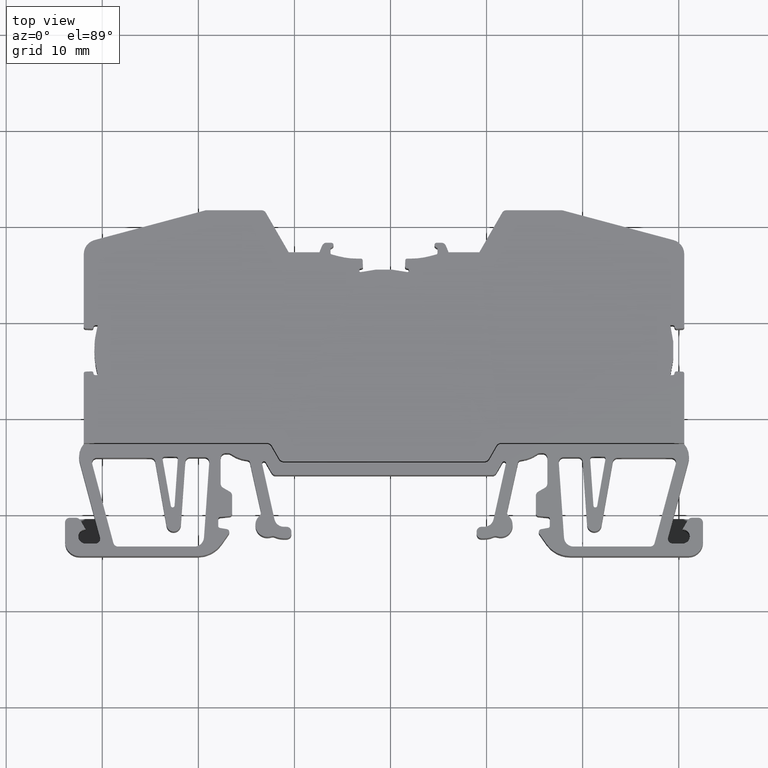
[diagram: clean part render]
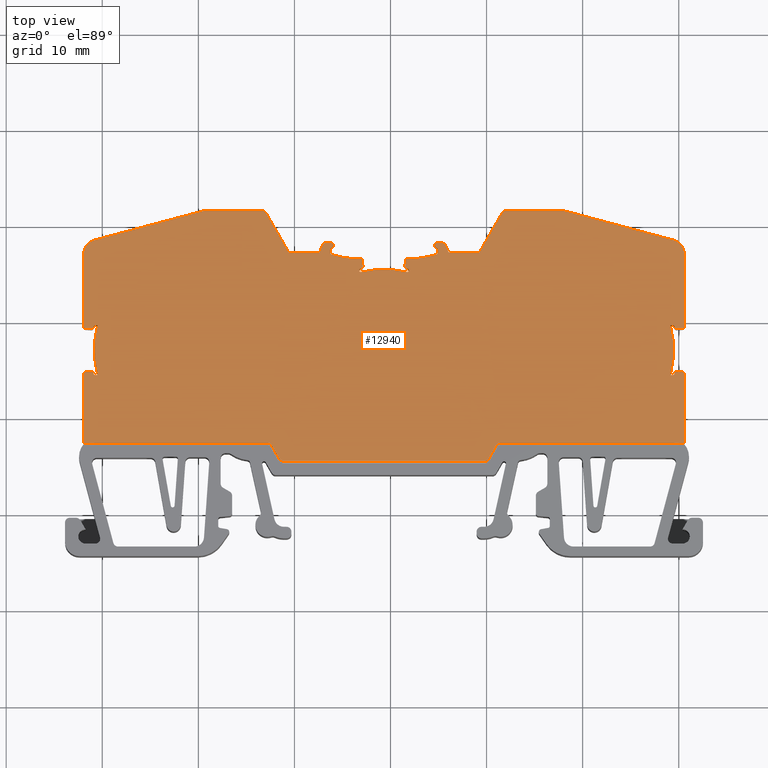
[diagram: same view with one face highlighted and labeled with its STEP entity id]
A machine part, top view. The second image highlights one B-rep face of the part: STEP entity #12940.
In plain terms, the highlighted planar face has unit normal (0, 0, 1).
Its self-contained STEP definition (entity closure, byte-faithful):
#69 = FACE_OUTER_BOUND ( 'NONE', #9108, .T. ) ;
#70 = CARTESIAN_POINT ( 'NONE',  ( 155.3216195286320600, 27.26186081523271900, -16.30000000000000100 ) ) ;
#81 = PLANE ( 'NONE',  #4797 ) ;
#94 = DIRECTION ( 'NONE',  ( 0.0000000000000000000, 0.0000000000000000000, 1.000000000000000000 ) ) ;
#99 = DIRECTION ( 'NONE',  ( 1.000000000000000000, 0.0000000000000000000, -0.0000000000000000000 ) ) ;
#1182 = VERTEX_POINT ( 'NONE', #11225 ) ;
#1184 = VERTEX_POINT ( 'NONE', #11243 ) ;
#1209 = VERTEX_POINT ( 'NONE', #11334 ) ;
#1212 = VERTEX_POINT ( 'NONE', #11313 ) ;
#1229 = VERTEX_POINT ( 'NONE', #11318 ) ;
#1243 = VERTEX_POINT ( 'NONE', #11294 ) ;
#1250 = VERTEX_POINT ( 'NONE', #11276 ) ;
#1255 = VERTEX_POINT ( 'NONE', #11326 ) ;
#1300 = VERTEX_POINT ( 'NONE', #11389 ) ;
#1880 = CARTESIAN_POINT ( 'NONE',  ( 184.6385301743371200, 30.63725046151475300, -16.30000000000000100 ) ) ;
#1885 = CARTESIAN_POINT ( 'NONE',  ( 181.7120907257660500, 25.56461171221572600, -16.30000000000000100 ) ) ;
#1892 = CARTESIAN_POINT ( 'NONE',  ( 176.7465662737640700, 25.41637851414622100, -16.30000000000000100 ) ) ;
#1907 = DIRECTION ( 'NONE',  ( 0.9999999927131956200, -0.0001207212018753209000, 0.0000000000000000000 ) ) ;
#1914 = LINE ( 'NONE', #1892, #13219 ) ;
#1917 = LINE ( 'NONE', #1885, #13218 ) ;
#1930 = CARTESIAN_POINT ( 'NONE',  ( 179.3214730323951500, 15.43934779043474500, -16.30000000000000100 ) ) ;
#1932 = CARTESIAN_POINT ( 'NONE',  ( 173.8219316421980500, 28.23404727670484600, -16.30000000000000100 ) ) ;
#1943 = DIRECTION ( 'NONE',  ( 0.0000000000000000000, 0.0000000000000000000, 1.000000000000000000 ) ) ;
#1944 = DIRECTION ( 'NONE',  ( -0.9999999999972321000, -2.352813720073950200E-006, 0.0000000000000000000 ) ) ;
#1948 = DIRECTION ( 'NONE',  ( 1.000000000000000000, 0.0000000000000000000, 0.0000000000000000000 ) ) ;
#1954 = LINE ( 'NONE', #1932, #13225 ) ;
#1956 = DIRECTION ( 'NONE',  ( -0.3826849168797564200, 0.9238789176037809400, 0.0000000000000000000 ) ) ;
#1969 = DIRECTION ( 'NONE',  ( -2.352813828535619900E-006, 0.9999999999972321000, 0.0000000000000000000 ) ) ;
#2078 = LINE ( 'NONE', #2096, #13310 ) ;
#2096 = CARTESIAN_POINT ( 'NONE',  ( 176.8947872689000700, 25.56460020675625000, -16.30000000000000100 ) ) ;
#2123 = CARTESIAN_POINT ( 'NONE',  ( 185.3038348674621100, 27.74000503296018000, -16.30000000000000100 ) ) ;
#2125 = DIRECTION ( 'NONE',  ( 1.000000000000000000, 0.0000000000000000000, 0.0000000000000000000 ) ) ;
#2126 = DIRECTION ( 'NONE',  ( -0.0000000000000000000, -0.0000000000000000000, -1.000000000000000000 ) ) ;
#2128 = DIRECTION ( 'NONE',  ( 1.000000000000000000, 0.0000000000000000000, 0.0000000000000000000 ) ) ;
#2135 = DIRECTION ( 'NONE',  ( 1.000000000000000000, 7.022160630754155400E-015, 0.0000000000000000000 ) ) ;
#2148 = DIRECTION ( 'NONE',  ( -0.0000000000000000000, -0.0000000000000000000, -1.000000000000000000 ) ) ;
#2150 = LINE ( 'NONE', #2184, #13305 ) ;
#2157 = CARTESIAN_POINT ( 'NONE',  ( 181.7482568532131200, 25.41638600124371900, -16.30000000000000100 ) ) ;
#2160 = DIRECTION ( 'NONE',  ( -0.0000000000000000000, -0.0000000000000000000, -1.000000000000000000 ) ) ;
#2164 = DIRECTION ( 'NONE',  ( -0.0000000000000000000, -0.0000000000000000000, -1.000000000000000000 ) ) ;
#2169 = CARTESIAN_POINT ( 'NONE',  ( 186.0432755812021000, 28.23407617920534900, -16.30000000000000100 ) ) ;
#2170 = CARTESIAN_POINT ( 'NONE',  ( 181.7482570713750900, 25.32366201334777100, -16.30000000000000100 ) ) ;
#2171 = CARTESIAN_POINT ( 'NONE',  ( 176.9309876021250400, 25.76420494983870000, -16.30000000000000100 ) ) ;
#2178 = DIRECTION ( 'NONE',  ( 1.000000000000000000, -5.214475715907972200E-014, 0.0000000000000000000 ) ) ;
#2182 = LINE ( 'NONE', #2169, #13269 ) ;
#2183 = DIRECTION ( 'NONE',  ( -1.000000000000000000, 0.0000000000000000000, 0.0000000000000000000 ) ) ;
#2184 = CARTESIAN_POINT ( 'NONE',  ( 177.1304020353941000, 25.77291914889471500, -16.30000000000000100 ) ) ;
#2187 = DIRECTION ( 'NONE',  ( 1.000000000000000000, 2.340720210250946800E-013, 0.0000000000000000000 ) ) ;
#2188 = DIRECTION ( 'NONE',  ( -0.04365727447751909000, 0.9990465666750446600, 0.0000000000000000000 ) ) ;
#2204 = CARTESIAN_POINT ( 'NONE',  ( 181.7121148222900600, 25.76421645384417000, -16.30000000000000100 ) ) ;
#2206 = DIRECTION ( 'NONE',  ( 1.000000000000000000, 0.0000000000000000000, 0.0000000000000000000 ) ) ;
#2216 = DIRECTION ( 'NONE',  ( 2.352813865996355100E-006, -0.9999999999972321000, 0.0000000000000000000 ) ) ;
#2224 = CARTESIAN_POINT ( 'NONE',  ( 181.8964781970860500, 25.41638634998070500, -16.30000000000000100 ) ) ;
#2236 = LINE ( 'NONE', #2224, #13322 ) ;
#2242 = DIRECTION ( 'NONE',  ( -0.0000000000000000000, -0.0000000000000000000, -1.000000000000000000 ) ) ;
#2249 = DIRECTION ( 'NONE',  ( -0.0000000000000000000, -0.0000000000000000000, -1.000000000000000000 ) ) ;
#2285 = CARTESIAN_POINT ( 'NONE',  ( 176.8947876176370900, 25.41637886288320700, -16.30000000000000100 ) ) ;
#2290 = DIRECTION ( 'NONE',  ( 1.000000000000000000, 0.0000000000000000000, 0.0000000000000000000 ) ) ;
#2304 = CARTESIAN_POINT ( 'NONE',  ( 176.8947878357251100, 25.32368628045970400, -16.30000000000000100 ) ) ;
#2305 = DIRECTION ( 'NONE',  ( -0.0000000000000000000, -0.0000000000000000000, -1.000000000000000000 ) ) ;
#2306 = DIRECTION ( 'NONE',  ( 1.000000000000000000, 0.0000000000000000000, 0.0000000000000000000 ) ) ;
#2358 = DIRECTION ( 'NONE',  ( 1.000000000000000000, 9.831024883056922400E-014, 0.0000000000000000000 ) ) ;
#2374 = DIRECTION ( 'NONE',  ( -0.0000000000000000000, -0.0000000000000000000, -1.000000000000000000 ) ) ;
#2384 = CARTESIAN_POINT ( 'NONE',  ( 173.8219322234270700, 27.98701170358267700, -16.30000000000000100 ) ) ;
#2391 = CARTESIAN_POINT ( 'NONE',  ( 181.5396012681551100, 26.39010187267174600, -16.30000000000000100 ) ) ;
#2393 = DIRECTION ( 'NONE',  ( -0.04354604023867592000, -0.9990514212889802800, 0.0000000000000000000 ) ) ;
#2400 = CARTESIAN_POINT ( 'NONE',  ( 209.5413637318528700, 19.57110775040447200, -16.29999999999999700 ) ) ;
#2401 = CARTESIAN_POINT ( 'NONE',  ( 209.5635305405041900, 19.47030078032660300, -16.29999999999999700 ) ) ;
#2407 = DIRECTION ( 'NONE',  ( -0.0000000000000000000, -0.0000000000000000000, -1.000000000000000000 ) ) ;
#2408 = DIRECTION ( 'NONE',  ( 1.000000000000000000, 1.404432126150515500E-014, 0.0000000000000000000 ) ) ;
#2412 = CARTESIAN_POINT ( 'NONE',  ( 209.4646623949039400, 19.64497716286755800, -16.30000000000000400 ) ) ;
#2413 = CARTESIAN_POINT ( 'NONE',  ( 209.5615362242281500, 19.52519385830133900, -16.30000000000000100 ) ) ;
#2421 = CARTESIAN_POINT ( 'NONE',  ( 209.3636105972982800, 19.66463029271124100, -16.29999999999999700 ) ) ;
#2429 = CARTESIAN_POINT ( 'NONE',  ( 209.4178221994311000, 19.66419883169367500, -16.29999999999999700 ) ) ;
#2433 = LINE ( 'NONE', #2391, #13390 ) ;
#2435 = CARTESIAN_POINT ( 'NONE',  ( 173.3393940226961000, 27.73997499513723100, -16.30000000000000100 ) ) ;
#2441 = DIRECTION ( 'NONE',  ( -0.3826827570088284200, -0.9238798122527205300, 0.0000000000000000000 ) ) ;
#2444 = LINE ( 'NONE', #1880, #13359 ) ;
#2462 = CARTESIAN_POINT ( 'NONE',  ( 172.8829316955540200, 27.92904757763374200, -16.30000000000000100 ) ) ;
#2467 = LINE ( 'NONE', #2468, #13373 ) ;
#2468 = CARTESIAN_POINT ( 'NONE',  ( 181.5778977227934700, 16.07271139915344800, -16.29999999999999700 ) ) ;
#2470 = LINE ( 'NONE', #2462, #13348 ) ;
#2477 = DIRECTION ( 'NONE',  ( -0.9990477967756290500, 0.04362911594063379600, -0.0000000000000000000 ) ) ;
#2780 = EDGE_CURVE ( 'NONE', #8510, #8458, #1917, .T. ) ;
#2783 = EDGE_CURVE ( 'NONE', #8516, #8523, #1914, .T. ) ;
#2785 = EDGE_CURVE ( 'NONE', #8530, #8436, #1954, .T. ) ;
#2786 = EDGE_CURVE ( 'NONE', #8456, #8525, #13224, .T. ) ;
#2832 = EDGE_CURVE ( 'NONE', #8536, #8492, #2078, .T. ) ;
#2840 = EDGE_CURVE ( 'NONE', #8458, #8545, #13294, .T. ) ;
#2843 = EDGE_CURVE ( 'NONE', #8442, #8457, #13299, .T. ) ;
#2847 = EDGE_CURVE ( 'NONE', #8529, #8522, #2150, .T. ) ;
#2849 = EDGE_CURVE ( 'NONE', #8529, #8492, #13307, .T. ) ;
#2851 = EDGE_CURVE ( 'NONE', #8442, #8533, #2182, .T. ) ;
#2853 = EDGE_CURVE ( 'NONE', #8444, #8456, #13321, .T. ) ;
#2859 = EDGE_CURVE ( 'NONE', #8510, #8500, #13318, .T. ) ;
#2863 = EDGE_CURVE ( 'NONE', #8545, #8444, #2236, .T. ) ;
#2876 = EDGE_CURVE ( 'NONE', #8523, #8536, #13291, .T. ) ;
#2889 = EDGE_CURVE ( 'NONE', #8525, #8516, #13367, .T. ) ;
#2902 = EDGE_CURVE ( 'NONE', #8530, #8460, #13372, .T. ) ;
#2908 = EDGE_CURVE ( 'NONE', #8491, #8436, #13336, .T. ) ;
#2914 = EDGE_CURVE ( 'NONE', #8559, #8497, #5306, .T. ) ;
#2919 = EDGE_CURVE ( 'NONE', #8514, #8500, #2433, .T. ) ;
#2922 = EDGE_CURVE ( 'NONE', #8491, #8563, #2470, .T. ) ;
#2926 = EDGE_CURVE ( 'NONE', #8573, #8577, #2467, .T. ) ;
#2935 = EDGE_CURVE ( 'NONE', #8596, #8457, #2444, .T. ) ;
#2936 = EDGE_CURVE ( 'NONE', #8563, #8592, #7151, .T. ) ;
#2939 = EDGE_CURVE ( 'NONE', #8587, #8460, #7147, .T. ) ;
#2954 = EDGE_CURVE ( 'NONE', #8557, #8497, #5284, .T. ) ;
#2956 = EDGE_CURVE ( 'NONE', #1209, #8533, #13389, .T. ) ;
#2965 = EDGE_CURVE ( 'NONE', #8552, #8577, #5302, .T. ) ;
#2966 = EDGE_CURVE ( 'NONE', #8652, #8596, #7228, .T. ) ;
#2968 = EDGE_CURVE ( 'NONE', #8578, #8541, #5289, .T. ) ;
#2974 = EDGE_CURVE ( 'NONE', #8562, #8548, #5293, .T. ) ;
#2975 = EDGE_CURVE ( 'NONE', #8643, #8634, #5280, .T. ) ;
#2978 = EDGE_CURVE ( 'NONE', #8552, #8574, #5292, .T. ) ;
#2979 = EDGE_CURVE ( 'NONE', #8578, #8610, #7304, .T. ) ;
#2995 = EDGE_CURVE ( 'NONE', #8562, #8589, #5295, .T. ) ;
#3000 = EDGE_CURVE ( 'NONE', #8603, #8557, #7340, .T. ) ;
#3005 = EDGE_CURVE ( 'NONE', #8553, #8548, #6362, .T. ) ;
#3010 = EDGE_CURVE ( 'NONE', #8576, #8553, #5288, .T. ) ;
#3011 = EDGE_CURVE ( 'NONE', #8576, #8489, #5307, .T. ) ;
#3016 = EDGE_CURVE ( 'NONE', #8613, #8541, #5308, .T. ) ;
#3019 = EDGE_CURVE ( 'NONE', #8610, #8570, #5313, .T. ) ;
#3036 = EDGE_CURVE ( 'NONE', #8585, #8670, #6537, .T. ) ;
#3037 = EDGE_CURVE ( 'NONE', #1182, #8613, #6552, .T. ) ;
#3050 = EDGE_CURVE ( 'NONE', #8589, #8659, #5315, .T. ) ;
#3061 = EDGE_CURVE ( 'NONE', #8673, #8614, #5317, .T. ) ;
#3075 = EDGE_CURVE ( 'NONE', #8670, #8673, #6769, .T. ) ;
#3083 = EDGE_CURVE ( 'NONE', #8585, #8656, #5355, .T. ) ;
#3102 = EDGE_CURVE ( 'NONE', #8652, #8727, #6854, .T. ) ;
#3103 = EDGE_CURVE ( 'NONE', #8723, #8592, #6885, .T. ) ;
#3106 = EDGE_CURVE ( 'NONE', #8659, #8680, #5396, .T. ) ;
#3119 = EDGE_CURVE ( 'NONE', #8643, #8723, #6960, .T. ) ;
#3139 = EDGE_CURVE ( 'NONE', #8614, #8633, #5381, .T. ) ;
#3145 = EDGE_CURVE ( 'NONE', #8642, #8573, #5390, .T. ) ;
#3148 = EDGE_CURVE ( 'NONE', #8727, #8656, #7055, .T. ) ;
#3152 = EDGE_CURVE ( 'NONE', #1184, #8720, #5364, .T. ) ;
#3155 = EDGE_CURVE ( 'NONE', #8559, #8605, #7059, .T. ) ;
#3158 = EDGE_CURVE ( 'NONE', #8716, #8570, #5354, .T. ) ;
#3162 = EDGE_CURVE ( 'NONE', #8724, #8587, #7106, .T. ) ;
#3175 = EDGE_CURVE ( 'NONE', #8683, #8622, #5366, .T. ) ;
#3176 = EDGE_CURVE ( 'NONE', #8514, #8701, #13539, .T. ) ;
#3178 = EDGE_CURVE ( 'NONE', #8692, #1243, #5334, .T. ) ;
#3179 = EDGE_CURVE ( 'NONE', #8692, #1255, #17211, .T. ) ;
#3181 = EDGE_CURVE ( 'NONE', #8683, #1300, #17227, .T. ) ;
#3185 = EDGE_CURVE ( 'NONE', #8700, #8681, #13558, .T. ) ;
#3188 = EDGE_CURVE ( 'NONE', #8720, #8489, #15745, .T. ) ;
#3190 = EDGE_CURVE ( 'NONE', #8737, #8700, #15762, .T. ) ;
#3191 = EDGE_CURVE ( 'NONE', #8574, #8721, #15749, .T. ) ;
#3192 = EDGE_CURVE ( 'NONE', #8605, #8721, #5340, .T. ) ;
#3197 = EDGE_CURVE ( 'NONE', #8736, #8726, #13565, .T. ) ;
#3198 = EDGE_CURVE ( 'NONE', #8731, #8722, #15789, .T. ) ;
#3199 = EDGE_CURVE ( 'NONE', #8680, #8634, #5356, .T. ) ;
#3202 = EDGE_CURVE ( 'NONE', #8642, #8734, #15792, .T. ) ;
#3203 = EDGE_CURVE ( 'NONE', #8711, #1243, #15796, .T. ) ;
#3205 = EDGE_CURVE ( 'NONE', #8603, #8633, #5382, .T. ) ;
#3213 = EDGE_CURVE ( 'NONE', #8730, #8679, #15918, .T. ) ;
#3214 = EDGE_CURVE ( 'NONE', #1300, #1229, #5341, .T. ) ;
#3217 = EDGE_CURVE ( 'NONE', #8622, #8716, #15897, .T. ) ;
#3221 = EDGE_CURVE ( 'NONE', #8679, #8724, #13608, .T. ) ;
#3232 = EDGE_CURVE ( 'NONE', #8711, #1250, #5369, .T. ) ;
#3236 = EDGE_CURVE ( 'NONE', #8681, #8736, #16032, .T. ) ;
#3239 = EDGE_CURVE ( 'NONE', #1229, #1250, #16053, .T. ) ;
#3256 = EDGE_CURVE ( 'NONE', #8731, #8522, #13638, .T. ) ;
#3258 = EDGE_CURVE ( 'NONE', #8726, #8701, #16279, .T. ) ;
#3263 = EDGE_CURVE ( 'NONE', #1255, #8688, #5361, .T. ) ;
#3269 = EDGE_CURVE ( 'NONE', #8722, #8730, #13630, .T. ) ;
#3272 = EDGE_CURVE ( 'NONE', #8688, #8734, #16366, .T. ) ;
#3275 = EDGE_CURVE ( 'NONE', #1212, #8737, #16424, .T. ) ;
#4460 = AXIS2_PLACEMENT_3D ( 'NONE', #10120, #10121, #10129 ) ;
#4485 = CIRCLE ( 'NONE', #4460, 0.2470355731225004600 ) ;
#4797 = AXIS2_PLACEMENT_3D ( 'NONE', #70, #94, #99 ) ;
#5039 = B_SPLINE_CURVE_WITH_KNOTS ( 'NONE', 3,
 ( #9954, #9916, #9927, #9934 ),
 .UNSPECIFIED., .F., .F.,
 ( 4, 4 ),
 ( 0.0000000000000000000, 0.5000010228767071100 ),
 .UNSPECIFIED. ) ;
#5280 = B_SPLINE_CURVE_WITH_KNOTS ( 'NONE', 3,
 ( #7286, #7266, #7274, #7279, #7292, #7275 ),
 .UNSPECIFIED., .F., .F.,
 ( 4, 2, 4 ),
 ( 0.0000000000000000000, 0.5000000000000000000, 1.000000000000000000 ),
 .UNSPECIFIED. ) ;
#5284 = B_SPLINE_CURVE_WITH_KNOTS ( 'NONE', 3,
 ( #7179, #7203, #7184, #7187, #7202, #7188 ),
 .UNSPECIFIED., .F., .F.,
 ( 4, 2, 4 ),
 ( 0.0000000000000000000, 0.5000000000000000000, 1.000000000000000000 ),
 .UNSPECIFIED. ) ;
#5288 = B_SPLINE_CURVE_WITH_KNOTS ( 'NONE', 3,
 ( #6374, #6352, #6365, #6391, #6353, #6376 ),
 .UNSPECIFIED., .F., .F.,
 ( 4, 2, 4 ),
 ( 0.0000000000000000000, 0.5000000000000000000, 1.000000000000000000 ),
 .UNSPECIFIED. ) ;
#5289 = B_SPLINE_CURVE_WITH_KNOTS ( 'NONE', 3,
 ( #7244, #7220, #7264, #7232, #7234, #7248 ),
 .UNSPECIFIED., .F., .F.,
 ( 4, 2, 4 ),
 ( 0.0000000000000000000, 0.5000000000000000000, 1.000000000000000000 ),
 .UNSPECIFIED. ) ;
#5292 = B_SPLINE_CURVE_WITH_KNOTS ( 'NONE', 3,
 ( #7268, #7276, #7309, #7313, #7312, #7336 ),
 .UNSPECIFIED., .F., .F.,
 ( 4, 2, 4 ),
 ( 0.0000000000000000000, 0.5000000000000000000, 1.000000000000000000 ),
 .UNSPECIFIED. ) ;
#5293 = B_SPLINE_CURVE_WITH_KNOTS ( 'NONE', 3,
 ( #7283, #7272, #7285, #7281, #7280, #7291 ),
 .UNSPECIFIED., .F., .F.,
 ( 4, 2, 4 ),
 ( 0.0000000000000000000, 0.5000000000000000000, 1.000000000000000000 ),
 .UNSPECIFIED. ) ;
#5295 = B_SPLINE_CURVE_WITH_KNOTS ( 'NONE', 3,
 ( #7371, #7363, #7345, #7365 ),
 .UNSPECIFIED., .F., .F.,
 ( 4, 4 ),
 ( 0.0000000000000000000, 1.000000000000000000 ),
 .UNSPECIFIED. ) ;
#5302 = B_SPLINE_CURVE_WITH_KNOTS ( 'NONE', 3,
 ( #7229, #7216, #7251, #7257, #7218, #7260 ),
 .UNSPECIFIED., .F., .F.,
 ( 4, 2, 4 ),
 ( 0.0000000000000000000, 0.5000000000000000000, 1.000000000000000000 ),
 .UNSPECIFIED. ) ;
#5306 = B_SPLINE_CURVE_WITH_KNOTS ( 'NONE', 3,
 ( #2421, #2429, #2412, #2400, #2413, #2401 ),
 .UNSPECIFIED., .F., .F.,
 ( 4, 2, 4 ),
 ( 0.0000000000000000000, 0.5000000000000000000, 1.000000000000000000 ),
 .UNSPECIFIED. ) ;
#5307 = B_SPLINE_CURVE_WITH_KNOTS ( 'NONE', 3,
 ( #6372, #6377, #6395, #6367, #6394, #6364 ),
 .UNSPECIFIED., .F., .F.,
 ( 4, 2, 4 ),
 ( 0.0000000000000000000, 0.5000000000000000000, 1.000000000000000000 ),
 .UNSPECIFIED. ) ;
#5308 = B_SPLINE_CURVE_WITH_KNOTS ( 'NONE', 3,
 ( #6355, #6445, #6435, #6419, #6420, #6438 ),
 .UNSPECIFIED., .F., .F.,
 ( 4, 2, 4 ),
 ( 0.0000000000000000000, 0.5000000000000000000, 1.000000000000000000 ),
 .UNSPECIFIED. ) ;
#5313 = B_SPLINE_CURVE_WITH_KNOTS ( 'NONE', 3,
 ( #6411, #6436, #6442, #6398, #6444, #6412 ),
 .UNSPECIFIED., .F., .F.,
 ( 4, 2, 4 ),
 ( 0.0000000000000000000, 0.5000000000000000000, 1.000000000000000000 ),
 .UNSPECIFIED. ) ;
#5315 = B_SPLINE_CURVE_WITH_KNOTS ( 'NONE', 3,
 ( #6583, #6596, #6701, #6696, #6711, #6716 ),
 .UNSPECIFIED., .F., .F.,
 ( 4, 2, 4 ),
 ( 0.0000000000000000000, 0.5000000000000000000, 1.000000000000000000 ),
 .UNSPECIFIED. ) ;
#5317 = B_SPLINE_CURVE_WITH_KNOTS ( 'NONE', 3,
 ( #6705, #6695, #6699, #6700, #6750, #6773 ),
 .UNSPECIFIED., .F., .F.,
 ( 4, 2, 4 ),
 ( 0.0000000000000000000, 0.5000000000000000000, 1.000000000000000000 ),
 .UNSPECIFIED. ) ;
#5334 = B_SPLINE_CURVE_WITH_KNOTS ( 'NONE', 3,
 ( #17206, #17215, #17232, #17207, #17200, #17229 ),
 .UNSPECIFIED., .F., .F.,
 ( 4, 2, 4 ),
 ( 0.0000000000000000000, 0.5000000000000000000, 1.000000000000000000 ),
 .UNSPECIFIED. ) ;
#5340 = B_SPLINE_CURVE_WITH_KNOTS ( 'NONE', 3,
 ( #15803, #15801, #15825, #15770, #15768, #15786 ),
 .UNSPECIFIED., .F., .F.,
 ( 4, 2, 4 ),
 ( 0.0000000000000000000, 0.5000000000000000000, 1.000000000000000000 ),
 .UNSPECIFIED. ) ;
#5341 = B_SPLINE_CURVE_WITH_KNOTS ( 'NONE', 3,
 ( #15912, #15914, #15930, #15842, #15844, #15895 ),
 .UNSPECIFIED., .F., .F.,
 ( 4, 2, 4 ),
 ( 0.0000000000000000000, 0.5000000000000000000, 1.000000000000000000 ),
 .UNSPECIFIED. ) ;
#5354 = B_SPLINE_CURVE_WITH_KNOTS ( 'NONE', 3,
 ( #7040, #7051, #7091, #7095 ),
 .UNSPECIFIED., .F., .F.,
 ( 4, 4 ),
 ( 0.5576627261517963500, 1.000000000000000000 ),
 .UNSPECIFIED. ) ;
#5355 = B_SPLINE_CURVE_WITH_KNOTS ( 'NONE', 3,
 ( #6834, #6786, #6818, #6787, #6820, #6799 ),
 .UNSPECIFIED., .F., .F.,
 ( 4, 2, 4 ),
 ( 0.0000000000000000000, 0.5000000000000000000, 1.000000000000000000 ),
 .UNSPECIFIED. ) ;
#5356 = B_SPLINE_CURVE_WITH_KNOTS ( 'NONE', 3,
 ( #15820, #15777, #15778, #15790 ),
 .UNSPECIFIED., .F., .F.,
 ( 4, 4 ),
 ( 0.0000000000000000000, 1.000000000000000000 ),
 .UNSPECIFIED. ) ;
#5361 = B_SPLINE_CURVE_WITH_KNOTS ( 'NONE', 3,
 ( #16229, #16293, #16245, #16253, #16300, #16264 ),
 .UNSPECIFIED., .F., .F.,
 ( 4, 2, 4 ),
 ( 0.0000000000000000000, 0.5000000000000000000, 1.000000000000000000 ),
 .UNSPECIFIED. ) ;
#5364 = B_SPLINE_CURVE_WITH_KNOTS ( 'NONE', 3,
 ( #7031, #7030, #7064, #7047 ),
 .UNSPECIFIED., .F., .F.,
 ( 4, 4 ),
 ( 0.5000010228767071100, 1.000000000000000000 ),
 .UNSPECIFIED. ) ;
#5366 = B_SPLINE_CURVE_WITH_KNOTS ( 'NONE', 3,
 ( #17219, #17223, #17210, #17228 ),
 .UNSPECIFIED., .F., .F.,
 ( 4, 4 ),
 ( 0.0000000000000000000, 0.5494098664776109200 ),
 .UNSPECIFIED. ) ;
#5369 = B_SPLINE_CURVE_WITH_KNOTS ( 'NONE', 3,
 ( #15971, #15975, #16057, #16091, #16089, #16073 ),
 .UNSPECIFIED., .F., .F.,
 ( 4, 2, 4 ),
 ( 0.0000000000000000000, 0.5000000000000000000, 1.000000000000000000 ),
 .UNSPECIFIED. ) ;
#5381 = B_SPLINE_CURVE_WITH_KNOTS ( 'NONE', 3,
 ( #7028, #6986, #6983, #7011 ),
 .UNSPECIFIED., .F., .F.,
 ( 4, 4 ),
 ( 0.0000000000000000000, 1.000000000000000000 ),
 .UNSPECIFIED. ) ;
#5382 = B_SPLINE_CURVE_WITH_KNOTS ( 'NONE', 3,
 ( #15855, #15879, #15928, #15857, #15884, #15849 ),
 .UNSPECIFIED., .F., .F.,
 ( 4, 2, 4 ),
 ( 0.0000000000000000000, 0.5000000000000000000, 1.000000000000000000 ),
 .UNSPECIFIED. ) ;
#5390 = B_SPLINE_CURVE_WITH_KNOTS ( 'NONE', 3,
 ( #7002, #6994, #7048, #7036, #7074, #7075 ),
 .UNSPECIFIED., .F., .F.,
 ( 4, 2, 4 ),
 ( 0.0000000000000000000, 0.5000000000000000000, 1.000000000000000000 ),
 .UNSPECIFIED. ) ;
#5396 = B_SPLINE_CURVE_WITH_KNOTS ( 'NONE', 3,
 ( #6901, #6914, #6922, #6908 ),
 .UNSPECIFIED., .F., .F.,
 ( 4, 4 ),
 ( 0.0000000000000000000, 1.000000000000000000 ),
 .UNSPECIFIED. ) ;
#6352 = CARTESIAN_POINT ( 'NONE',  ( 149.0815221393042400, 19.41745401807800800, -16.29999999999999700 ) ) ;
#6353 = CARTESIAN_POINT ( 'NONE',  ( 148.9271945799650900, 19.27385504936715700, -16.30000000000000100 ) ) ;
#6355 = CARTESIAN_POINT ( 'NONE',  ( 149.2829395562747800, 14.45297880150514800, -16.29999999999999700 ) ) ;
#6362 = LINE ( 'NONE', #6383, #13416 ) ;
#6364 = CARTESIAN_POINT ( 'NONE',  ( 149.2829402196636000, 19.66463029271150400, -16.29999999999999700 ) ) ;
#6365 = CARTESIAN_POINT ( 'NONE',  ( 149.0580470671206100, 19.36556705823798600, -16.29999999999999700 ) ) ;
#6367 = CARTESIAN_POINT ( 'NONE',  ( 149.1815452920446000, 19.64533051874187200, -16.29999999999999700 ) ) ;
#6372 = CARTESIAN_POINT ( 'NONE',  ( 149.0830206511378400, 19.47030181121678900, -16.29999999999999700 ) ) ;
#6374 = CARTESIAN_POINT ( 'NONE',  ( 149.0830206511378400, 19.47030181121678900, -16.29999999999999700 ) ) ;
#6376 = CARTESIAN_POINT ( 'NONE',  ( 148.8743756615359900, 19.27616168847231400, -16.29999999999999700 ) ) ;
#6377 = CARTESIAN_POINT ( 'NONE',  ( 149.0849889307633900, 19.52447801051433600, -16.29999999999999700 ) ) ;
#6383 = CARTESIAN_POINT ( 'NONE',  ( 181.6552771971049900, 17.84459679403024900, -16.29999999999999700 ) ) ;
#6384 = DIRECTION ( 'NONE',  ( -0.9990477967756292700, 0.04362911594062896000, -0.0000000000000000000 ) ) ;
#6391 = CARTESIAN_POINT ( 'NONE',  ( 148.9806356673790900, 19.29353716793885100, -16.29999999999999700 ) ) ;
#6394 = CARTESIAN_POINT ( 'NONE',  ( 149.2280126655907700, 19.66419313076702800, -16.30000000000000100 ) ) ;
#6395 = CARTESIAN_POINT ( 'NONE',  ( 149.1055309060057000, 19.57075439453015900, -16.30000000000000400 ) ) ;
#6398 = CARTESIAN_POINT ( 'NONE',  ( 148.0921810988395200, 14.71543399127770400, -16.29999999999999700 ) ) ;
#6411 = CARTESIAN_POINT ( 'NONE',  ( 148.2645154541361900, 14.81481454997951800, -16.29999999999999700 ) ) ;
#6412 = CARTESIAN_POINT ( 'NONE',  ( 148.0732485454940700, 14.61500499063273800, -16.30000000000000100 ) ) ;
#6419 = CARTESIAN_POINT ( 'NONE',  ( 149.1051873163059200, 14.54650160031450800, -16.29999999999999700 ) ) ;
#6420 = CARTESIAN_POINT ( 'NONE',  ( 149.0850149129125800, 14.59241543282462800, -16.30000000000000100 ) ) ;
#6435 = CARTESIAN_POINT ( 'NONE',  ( 149.1818883525614900, 14.47263219838437100, -16.30000000000000400 ) ) ;
#6436 = CARTESIAN_POINT ( 'NONE',  ( 148.2109629447107900, 14.81205208008062300, -16.29999999999999700 ) ) ;
#6438 = CARTESIAN_POINT ( 'NONE',  ( 149.0830206242535500, 14.64730839687979900, -16.29999999999999700 ) ) ;
#6442 = CARTESIAN_POINT ( 'NONE',  ( 148.1653569559484000, 14.79117980543230000, -16.30000000000000400 ) ) ;
#6444 = CARTESIAN_POINT ( 'NONE',  ( 148.0736732449236400, 14.66933335536998400, -16.30000000000000100 ) ) ;
#6445 = CARTESIAN_POINT ( 'NONE',  ( 149.2287284139405000, 14.45341044206397300, -16.29999999999999700 ) ) ;
#6537 = LINE ( 'NONE', #6541, #13433 ) ;
#6541 = CARTESIAN_POINT ( 'NONE',  ( 197.8732685254500200, 31.61042837215304900, -16.29999999999999700 ) ) ;
#6552 = LINE ( 'NONE', #6554, #13455 ) ;
#6554 = CARTESIAN_POINT ( 'NONE',  ( 179.3234426320405000, 14.45287845167088000, -16.29999999999999700 ) ) ;
#6555 = DIRECTION ( 'NONE',  ( 0.9999999999999923400, 1.231191674211198800E-007, -0.0000000000000000000 ) ) ;
#6556 = DIRECTION ( 'NONE',  ( -0.9999999999944205700, 3.340484479243183300E-006, -0.0000000000000000000 ) ) ;
#6583 = CARTESIAN_POINT ( 'NONE',  ( 148.0732448195256800, 27.05647520077374700, -16.29999999999999700 ) ) ;
#6596 = CARTESIAN_POINT ( 'NONE',  ( 148.0732448195258300, 27.38372447955580200, -16.29999999999999700 ) ) ;
#6695 = CARTESIAN_POINT ( 'NONE',  ( 209.7776333987838500, 28.42066566522396800, -16.29999999999999700 ) ) ;
#6696 = CARTESIAN_POINT ( 'NONE',  ( 148.5824316509635100, 28.22924173997366300, -16.29999999999999700 ) ) ;
#6699 = CARTESIAN_POINT ( 'NONE',  ( 210.0641198683880800, 28.22924149575500900, -16.29999999999999700 ) ) ;
#6700 = CARTESIAN_POINT ( 'NONE',  ( 210.4625534280972700, 27.70999242410225700, -16.29999999999999700 ) ) ;
#6701 = CARTESIAN_POINT ( 'NONE',  ( 148.1839981280484200, 27.70999315820292400, -16.29999999999999700 ) ) ;
#6705 = CARTESIAN_POINT ( 'NONE',  ( 209.4615346553344800, 28.50536400858702600, -16.29999999999999700 ) ) ;
#6711 = CARTESIAN_POINT ( 'NONE',  ( 148.8689179621401900, 28.42066571841735000, -16.30000000000000100 ) ) ;
#6716 = CARTESIAN_POINT ( 'NONE',  ( 149.1850165070683800, 28.50536400858700500, -16.30000000000000100 ) ) ;
#6750 = CARTESIAN_POINT ( 'NONE',  ( 210.5733066119077000, 27.38372345193509700, -16.30000000000000100 ) ) ;
#6769 = LINE ( 'NONE', #6770, #13496 ) ;
#6770 = CARTESIAN_POINT ( 'NONE',  ( 209.4615346553344800, 28.50536400858699800, -16.29999999999999700 ) ) ;
#6773 = CARTESIAN_POINT ( 'NONE',  ( 210.5733034060161500, 27.05647430537957000, -16.29999999999999700 ) ) ;
#6780 = DIRECTION ( 'NONE',  ( 0.9659258718755188200, -0.2588188749715109600, -0.0000000000000000000 ) ) ;
#6786 = CARTESIAN_POINT ( 'NONE',  ( 191.9664346697803400, 31.60991618691982200, -16.29999999999999700 ) ) ;
#6787 = CARTESIAN_POINT ( 'NONE',  ( 191.7299090363283900, 31.49976412349867500, -16.29999999999999700 ) ) ;
#6799 = CARTESIAN_POINT ( 'NONE',  ( 191.6230821324231800, 31.36042680044299400, -16.29999999999999700 ) ) ;
#6818 = CARTESIAN_POINT ( 'NONE',  ( 191.8822799537036600, 31.58711618834903600, -16.30000000000000400 ) ) ;
#6820 = CARTESIAN_POINT ( 'NONE',  ( 191.6689047945900500, 31.43875974145832300, -16.30000000000000100 ) ) ;
#6834 = CARTESIAN_POINT ( 'NONE',  ( 192.0560947831845100, 31.61042765594745400, -16.29999999999999700 ) ) ;
#6835 = DIRECTION ( 'NONE',  ( 1.000000000000000000, 0.0000000000000000000, -0.0000000000000000000 ) ) ;
#6854 = LINE ( 'NONE', #6882, #13479 ) ;
#6882 = CARTESIAN_POINT ( 'NONE',  ( 169.4015378956240200, 27.24152987253115300, -16.29999999999999700 ) ) ;
#6885 = LINE ( 'NONE', #6891, #13466 ) ;
#6891 = CARTESIAN_POINT ( 'NONE',  ( 189.2450132667794900, 27.24152987253115300, -16.29999999999999700 ) ) ;
#6901 = CARTESIAN_POINT ( 'NONE',  ( 149.1850165070683800, 28.50536400858700500, -16.30000000000000100 ) ) ;
#6908 = CARTESIAN_POINT ( 'NONE',  ( 160.7732843550065000, 31.61042883250452800, -16.30000000000000100 ) ) ;
#6914 = CARTESIAN_POINT ( 'NONE',  ( 153.0477739200391100, 29.54038600874522700, -16.30000000000001100 ) ) ;
#6919 = DIRECTION ( 'NONE',  ( 1.000000000000000000, 0.0000000000000000000, -0.0000000000000000000 ) ) ;
#6922 = CARTESIAN_POINT ( 'NONE',  ( 156.9105313330097700, 30.57540800890343400, -16.30000000000001100 ) ) ;
#6942 = CARTESIAN_POINT ( 'NONE',  ( 169.4015125559714900, 27.24152987253115300, -16.29999999999999700 ) ) ;
#6949 = DIRECTION ( 'NONE',  ( 0.4999996466730368700, -0.8660256077777598300, -0.0000000000000000000 ) ) ;
#6960 = LINE ( 'NONE', #6942, #13463 ) ;
#6983 = CARTESIAN_POINT ( 'NONE',  ( 210.5733022028703700, 22.02056124664516500, -16.29999999999999700 ) ) ;
#6986 = CARTESIAN_POINT ( 'NONE',  ( 210.5733042728741700, 24.53851822370943100, -16.29999999999999700 ) ) ;
#6994 = CARTESIAN_POINT ( 'NONE',  ( 210.5728834789749700, 14.66862704056854700, -16.29999999999999700 ) ) ;
#7002 = CARTESIAN_POINT ( 'NONE',  ( 210.5733026169092200, 14.61500499063750000, -16.29999999999999700 ) ) ;
#7011 = CARTESIAN_POINT ( 'NONE',  ( 210.5733050089729400, 19.50260426958075400, -16.29999999999999700 ) ) ;
#7028 = CARTESIAN_POINT ( 'NONE',  ( 210.5733034060161500, 27.05647430537957000, -16.29999999999999700 ) ) ;
#7030 = CARTESIAN_POINT ( 'NONE',  ( 149.1800094123575200, 17.93756078817072100, -16.29999999999999700 ) ) ;
#7031 = CARTESIAN_POINT ( 'NONE',  ( 149.1800094125033800, 17.05880934880111300, -16.30000000000000100 ) ) ;
#7033 = CARTESIAN_POINT ( 'NONE',  ( 179.3232755812014700, 19.66463029271150000, -16.29999999999999700 ) ) ;
#7036 = CARTESIAN_POINT ( 'NONE',  ( 210.4815424254154000, 14.79151314201966000, -16.29999999999999700 ) ) ;
#7037 = CARTESIAN_POINT ( 'NONE',  ( 189.2450386064319900, 27.24152987253115300, -16.29999999999999700 ) ) ;
#7040 = CARTESIAN_POINT ( 'NONE',  ( 148.0732576913820500, 11.39912134804108000, -16.30000000000000100 ) ) ;
#7042 = DIRECTION ( 'NONE',  ( 0.4999996466730368700, 0.8660256077777598300, -0.0000000000000000000 ) ) ;
#7047 = CARTESIAN_POINT ( 'NONE',  ( 149.5254934006024100, 19.66463199918346300, -16.29999999999999700 ) ) ;
#7048 = CARTESIAN_POINT ( 'NONE',  ( 210.5540218446084900, 14.71510065468942800, -16.30000000000000400 ) ) ;
#7051 = CARTESIAN_POINT ( 'NONE',  ( 148.0732568101264200, 12.47108256224062500, -16.29999999999999700 ) ) ;
#7055 = LINE ( 'NONE', #7037, #13583 ) ;
#7059 = LINE ( 'NONE', #7033, #13521 ) ;
#7064 = CARTESIAN_POINT ( 'NONE',  ( 149.2965062101697200, 18.81624172148073600, -16.29999999999999700 ) ) ;
#7073 = DIRECTION ( 'NONE',  ( -1.000000000000000000, -0.0000000000000000000, -0.0000000000000000000 ) ) ;
#7074 = CARTESIAN_POINT ( 'NONE',  ( 210.4362936165004800, 14.81201569256132400, -16.30000000000000100 ) ) ;
#7075 = CARTESIAN_POINT ( 'NONE',  ( 210.3820357082669800, 14.81481454997952500, -16.29999999999999700 ) ) ;
#7091 = CARTESIAN_POINT ( 'NONE',  ( 148.0732559288707600, 13.54304377644017000, -16.29999999999999700 ) ) ;
#7095 = CARTESIAN_POINT ( 'NONE',  ( 148.0732485454940700, 14.61500499063273800, -16.30000000000000100 ) ) ;
#7106 = LINE ( 'NONE', #7117, #13577 ) ;
#7114 = DIRECTION ( 'NONE',  ( -1.463357527354439900E-005, 0.9999999998929292000, 0.0000000000000000000 ) ) ;
#7117 = CARTESIAN_POINT ( 'NONE',  ( 173.7578213911740800, 27.16174945778069400, -16.30000000000000100 ) ) ;
#7125 = DIRECTION ( 'NONE',  ( 0.8660731400801297000, 0.4999173091939746500, 0.0000000000000000000 ) ) ;
#7127 = CARTESIAN_POINT ( 'NONE',  ( 172.5999544947560800, 13.14590735506274800, -16.30000000000000100 ) ) ;
#7133 = CARTESIAN_POINT ( 'NONE',  ( 173.7578181260430800, 27.66476718721070700, -16.30000000000000100 ) ) ;
#7146 = DIRECTION ( 'NONE',  ( 0.0000000000000000000, -1.000000000000000000, 0.0000000000000000000 ) ) ;
#7147 = LINE ( 'NONE', #7133, #13380 ) ;
#7151 = LINE ( 'NONE', #7127, #13337 ) ;
#7179 = CARTESIAN_POINT ( 'NONE',  ( 209.7721757311619800, 19.27616169852996800, -16.29999999999999700 ) ) ;
#7184 = CARTESIAN_POINT ( 'NONE',  ( 209.6659155361943500, 19.29353727348377500, -16.29999999999999700 ) ) ;
#7187 = CARTESIAN_POINT ( 'NONE',  ( 209.5885046374365900, 19.36556640992215300, -16.29999999999999700 ) ) ;
#7188 = CARTESIAN_POINT ( 'NONE',  ( 209.5635305405041900, 19.47030078032660300, -16.29999999999999700 ) ) ;
#7197 = CARTESIAN_POINT ( 'NONE',  ( 184.8214097494280600, 27.98703773126174400, -16.30000000000000100 ) ) ;
#7198 = DIRECTION ( 'NONE',  ( 1.000000000000000000, -4.213296378452967000E-014, 0.0000000000000000000 ) ) ;
#7202 = CARTESIAN_POINT ( 'NONE',  ( 209.5650295135366400, 19.41745275278079000, -16.30000000000000100 ) ) ;
#7203 = CARTESIAN_POINT ( 'NONE',  ( 209.7193560903570000, 19.27385527185424200, -16.29999999999999700 ) ) ;
#7212 = DIRECTION ( 'NONE',  ( -0.0000000000000000000, -0.0000000000000000000, -1.000000000000000000 ) ) ;
#7216 = CARTESIAN_POINT ( 'NONE',  ( 209.5650289991993700, 14.70015517358267800, -16.29999999999999700 ) ) ;
#7218 = CARTESIAN_POINT ( 'NONE',  ( 209.7193565686138800, 14.84375421143378800, -16.30000000000000100 ) ) ;
#7220 = CARTESIAN_POINT ( 'NONE',  ( 148.9271946331494400, 14.84375411109597700, -16.29999999999999700 ) ) ;
#7228 = LINE ( 'NONE', #7245, #13386 ) ;
#7229 = CARTESIAN_POINT ( 'NONE',  ( 209.5635305089118100, 14.64730736598991400, -16.29999999999999700 ) ) ;
#7232 = CARTESIAN_POINT ( 'NONE',  ( 149.0580464754168600, 14.75204297822502000, -16.29999999999999700 ) ) ;
#7234 = CARTESIAN_POINT ( 'NONE',  ( 149.0815216702327500, 14.70015652823606800, -16.30000000000000100 ) ) ;
#7244 = CARTESIAN_POINT ( 'NONE',  ( 148.8743754899483300, 14.84144756423145700, -16.29999999999999700 ) ) ;
#7245 = CARTESIAN_POINT ( 'NONE',  ( 186.0432755812021000, 13.14590735506274800, -16.30000000000000100 ) ) ;
#7246 = DIRECTION ( 'NONE',  ( 0.0000000000000000000, 1.000000000000000000, 0.0000000000000000000 ) ) ;
#7248 = CARTESIAN_POINT ( 'NONE',  ( 149.0830206242535500, 14.64730839687979900, -16.29999999999999700 ) ) ;
#7251 = CARTESIAN_POINT ( 'NONE',  ( 209.5885040622367800, 14.75204215622161300, -16.29999999999999700 ) ) ;
#7257 = CARTESIAN_POINT ( 'NONE',  ( 209.6659154672881900, 14.82407208144015500, -16.29999999999999700 ) ) ;
#7260 = CARTESIAN_POINT ( 'NONE',  ( 209.7721759614560400, 14.84144755161067800, -16.29999999999999700 ) ) ;
#7264 = CARTESIAN_POINT ( 'NONE',  ( 148.9806353438783000, 14.82407216757171400, -16.29999999999999700 ) ) ;
#7266 = CARTESIAN_POINT ( 'NONE',  ( 166.9781965285440300, 31.43781926269870300, -16.29999999999999700 ) ) ;
#7268 = CARTESIAN_POINT ( 'NONE',  ( 209.5635305089118100, 14.64730736598991400, -16.29999999999999700 ) ) ;
#7272 = CARTESIAN_POINT ( 'NONE',  ( 148.0736716895507900, 19.44898221964123100, -16.29999999999999700 ) ) ;
#7274 = CARTESIAN_POINT ( 'NONE',  ( 166.9163739124176100, 31.49929947352375600, -16.30000000000000400 ) ) ;
#7275 = CARTESIAN_POINT ( 'NONE',  ( 166.5904565199155300, 31.61042765594739700, -16.30000000000000100 ) ) ;
#7276 = CARTESIAN_POINT ( 'NONE',  ( 209.5615622565273100, 14.59313127870151500, -16.29999999999999700 ) ) ;
#7279 = CARTESIAN_POINT ( 'NONE',  ( 166.7645395442045500, 31.58758076797547100, -16.29999999999999700 ) ) ;
#7280 = CARTESIAN_POINT ( 'NONE',  ( 148.2102575583786600, 19.30559356763610900, -16.30000000000000100 ) ) ;
#7281 = CARTESIAN_POINT ( 'NONE',  ( 148.1650092878584500, 19.32609611817948200, -16.29999999999999700 ) ) ;
#7283 = CARTESIAN_POINT ( 'NONE',  ( 148.0732464185017200, 19.50260426957746400, -16.29999999999999700 ) ) ;
#7285 = CARTESIAN_POINT ( 'NONE',  ( 148.0925319972926400, 19.40250860551619300, -16.30000000000000400 ) ) ;
#7286 = CARTESIAN_POINT ( 'NONE',  ( 167.0234690299805900, 31.36042680044272400, -16.29999999999999700 ) ) ;
#7291 = CARTESIAN_POINT ( 'NONE',  ( 148.2645154541361900, 19.30279471021771400, -16.29999999999999700 ) ) ;
#7292 = CARTESIAN_POINT ( 'NONE',  ( 166.6812061414060500, 31.60990994637473500, -16.30000000000000100 ) ) ;
#7304 = LINE ( 'NONE', #7331, #13398 ) ;
#7309 = CARTESIAN_POINT ( 'NONE',  ( 209.5410203714225500, 14.54685495405803600, -16.30000000000000400 ) ) ;
#7312 = CARTESIAN_POINT ( 'NONE',  ( 209.4185390439030200, 14.45341614535952600, -16.30000000000000100 ) ) ;
#7313 = CARTESIAN_POINT ( 'NONE',  ( 209.4650062845167000, 14.47227884464097900, -16.29999999999999700 ) ) ;
#7323 = DIRECTION ( 'NONE',  ( -0.9990477967756290500, -0.04362911594063379600, -0.0000000000000000000 ) ) ;
#7331 = CARTESIAN_POINT ( 'NONE',  ( 177.0686534396100200, 16.07271139915344800, -16.29999999999999700 ) ) ;
#7336 = CARTESIAN_POINT ( 'NONE',  ( 209.3636116061284700, 14.45297880150514800, -16.29999999999999700 ) ) ;
#7340 = LINE ( 'NONE', #7348, #13417 ) ;
#7345 = CARTESIAN_POINT ( 'NONE',  ( 148.0732468895290300, 24.53851822370945600, -16.29999999999999700 ) ) ;
#7348 = CARTESIAN_POINT ( 'NONE',  ( 176.9912739652984900, 17.84459679403024900, -16.29999999999999700 ) ) ;
#7352 = DIRECTION ( 'NONE',  ( -0.9990477967756292700, -0.04362911594062896000, -0.0000000000000000000 ) ) ;
#7363 = CARTESIAN_POINT ( 'NONE',  ( 148.0732489595328000, 22.02056124664516200, -16.29999999999999700 ) ) ;
#7365 = CARTESIAN_POINT ( 'NONE',  ( 148.0732448195256800, 27.05647520077374700, -16.29999999999999700 ) ) ;
#7371 = CARTESIAN_POINT ( 'NONE',  ( 148.0732464185017200, 19.50260426957746400, -16.29999999999999700 ) ) ;
#8436 = VERTEX_POINT ( 'NONE', #18873 ) ;
#8442 = VERTEX_POINT ( 'NONE', #18870 ) ;
#8444 = VERTEX_POINT ( 'NONE', #18864 ) ;
#8456 = VERTEX_POINT ( 'NONE', #18854 ) ;
#8457 = VERTEX_POINT ( 'NONE', #18835 ) ;
#8458 = VERTEX_POINT ( 'NONE', #18883 ) ;
#8460 = VERTEX_POINT ( 'NONE', #18872 ) ;
#8489 = VERTEX_POINT ( 'NONE', #18887 ) ;
#8491 = VERTEX_POINT ( 'NONE', #18896 ) ;
#8492 = VERTEX_POINT ( 'NONE', #18899 ) ;
#8497 = VERTEX_POINT ( 'NONE', #18889 ) ;
#8500 = VERTEX_POINT ( 'NONE', #18892 ) ;
#8510 = VERTEX_POINT ( 'NONE', #18927 ) ;
#8514 = VERTEX_POINT ( 'NONE', #18923 ) ;
#8516 = VERTEX_POINT ( 'NONE', #18910 ) ;
#8522 = VERTEX_POINT ( 'NONE', #18928 ) ;
#8523 = VERTEX_POINT ( 'NONE', #18904 ) ;
#8525 = VERTEX_POINT ( 'NONE', #18915 ) ;
#8529 = VERTEX_POINT ( 'NONE', #18919 ) ;
#8530 = VERTEX_POINT ( 'NONE', #18908 ) ;
#8533 = VERTEX_POINT ( 'NONE', #18918 ) ;
#8536 = VERTEX_POINT ( 'NONE', #18961 ) ;
#8541 = VERTEX_POINT ( 'NONE', #18967 ) ;
#8545 = VERTEX_POINT ( 'NONE', #18955 ) ;
#8548 = VERTEX_POINT ( 'NONE', #18981 ) ;
#8552 = VERTEX_POINT ( 'NONE', #18950 ) ;
#8553 = VERTEX_POINT ( 'NONE', #18982 ) ;
#8557 = VERTEX_POINT ( 'NONE', #18979 ) ;
#8559 = VERTEX_POINT ( 'NONE', #18942 ) ;
#8562 = VERTEX_POINT ( 'NONE', #18987 ) ;
#8563 = VERTEX_POINT ( 'NONE', #18938 ) ;
#8570 = VERTEX_POINT ( 'NONE', #18988 ) ;
#8573 = VERTEX_POINT ( 'NONE', #18949 ) ;
#8574 = VERTEX_POINT ( 'NONE', #18951 ) ;
#8576 = VERTEX_POINT ( 'NONE', #18969 ) ;
#8577 = VERTEX_POINT ( 'NONE', #18971 ) ;
#8578 = VERTEX_POINT ( 'NONE', #18989 ) ;
#8585 = VERTEX_POINT ( 'NONE', #18954 ) ;
#8587 = VERTEX_POINT ( 'NONE', #18975 ) ;
#8589 = VERTEX_POINT ( 'NONE', #18976 ) ;
#8592 = VERTEX_POINT ( 'NONE', #19032 ) ;
#8596 = VERTEX_POINT ( 'NONE', #18990 ) ;
#8603 = VERTEX_POINT ( 'NONE', #19044 ) ;
#8605 = VERTEX_POINT ( 'NONE', #19008 ) ;
#8610 = VERTEX_POINT ( 'NONE', #19052 ) ;
#8613 = VERTEX_POINT ( 'NONE', #19053 ) ;
#8614 = VERTEX_POINT ( 'NONE', #19031 ) ;
#8622 = VERTEX_POINT ( 'NONE', #19037 ) ;
#8633 = VERTEX_POINT ( 'NONE', #18993 ) ;
#8634 = VERTEX_POINT ( 'NONE', #19040 ) ;
#8642 = VERTEX_POINT ( 'NONE', #19019 ) ;
#8643 = VERTEX_POINT ( 'NONE', #18992 ) ;
#8652 = VERTEX_POINT ( 'NONE', #18999 ) ;
#8656 = VERTEX_POINT ( 'NONE', #19103 ) ;
#8659 = VERTEX_POINT ( 'NONE', #19070 ) ;
#8670 = VERTEX_POINT ( 'NONE', #19074 ) ;
#8673 = VERTEX_POINT ( 'NONE', #19090 ) ;
#8679 = VERTEX_POINT ( 'NONE', #19059 ) ;
#8680 = VERTEX_POINT ( 'NONE', #19068 ) ;
#8681 = VERTEX_POINT ( 'NONE', #19080 ) ;
#8683 = VERTEX_POINT ( 'NONE', #19105 ) ;
#8688 = VERTEX_POINT ( 'NONE', #19078 ) ;
#8692 = VERTEX_POINT ( 'NONE', #19055 ) ;
#8700 = VERTEX_POINT ( 'NONE', #19058 ) ;
#8701 = VERTEX_POINT ( 'NONE', #19079 ) ;
#8711 = VERTEX_POINT ( 'NONE', #19064 ) ;
#8716 = VERTEX_POINT ( 'NONE', #19151 ) ;
#8720 = VERTEX_POINT ( 'NONE', #19122 ) ;
#8721 = VERTEX_POINT ( 'NONE', #19142 ) ;
#8722 = VERTEX_POINT ( 'NONE', #19145 ) ;
#8723 = VERTEX_POINT ( 'NONE', #19123 ) ;
#8724 = VERTEX_POINT ( 'NONE', #19111 ) ;
#8726 = VERTEX_POINT ( 'NONE', #19112 ) ;
#8727 = VERTEX_POINT ( 'NONE', #19150 ) ;
#8730 = VERTEX_POINT ( 'NONE', #19131 ) ;
#8731 = VERTEX_POINT ( 'NONE', #19157 ) ;
#8734 = VERTEX_POINT ( 'NONE', #19119 ) ;
#8736 = VERTEX_POINT ( 'NONE', #19113 ) ;
#8737 = VERTEX_POINT ( 'NONE', #19118 ) ;
#9108 = EDGE_LOOP ( 'NONE', ( #15297, #15308, #15319, #15339, #15381, #15350, #15281, #15342, #15344, #15320, #15338, #15324, #15349, #15294, #15370, #15282, #15280, #15321, #15348, #15288, #15304, #15296, #15375, #15363, #15376, #15336, #15351, #15314, #15322, #15274, #15305, #15306, #15267, #15337, #15264, #15330, #15300, #15269, #15271, #15273, #15364, #15358, #15291, #15361, #15347, #15357, #15335, #15328, #15380, #15334, #15379, #15394, #15362, #15410, #15407, #15354, #15373, #15415, #15382, #15346, #15386, #15352, #15392, #15390, #15371, #15383, #15353, #15414, #15385, #15374, #15413, #15355, #15419, #15400, #15356, #15359, #15368, #15397, #15360, #15398, #15422, #15412, #15396, #15384, #15387, #15417, #15377, #15365 ) ) ;
#9916 = CARTESIAN_POINT ( 'NONE',  ( 149.2965071688828400, 15.30136978671230700, -16.29999999999999700 ) ) ;
#9927 = CARTESIAN_POINT ( 'NONE',  ( 149.1800094123579500, 16.18005431400665000, -16.29999999999999700 ) ) ;
#9934 = CARTESIAN_POINT ( 'NONE',  ( 149.1800094125033800, 17.05880934880111300, -16.30000000000000100 ) ) ;
#9954 = CARTESIAN_POINT ( 'NONE',  ( 149.5254962113287100, 14.45297628478540600, -16.29999999999999700 ) ) ;
#10120 = CARTESIAN_POINT ( 'NONE',  ( 184.8214097494280600, 27.98703773126174400, -16.30000000000000100 ) ) ;
#10121 = DIRECTION ( 'NONE',  ( -0.0000000000000000000, -0.0000000000000000000, -1.000000000000000000 ) ) ;
#10129 = DIRECTION ( 'NONE',  ( 1.000000000000000000, -9.831024883056922400E-014, 0.0000000000000000000 ) ) ;
#11225 = CARTESIAN_POINT ( 'NONE',  ( 149.5254962113287100, 14.45297628478540600, -16.29999999999999700 ) ) ;
#11243 = CARTESIAN_POINT ( 'NONE',  ( 149.1800094125033800, 17.05880934880111300, -16.30000000000000100 ) ) ;
#11276 = CARTESIAN_POINT ( 'NONE',  ( 168.4085567553265200, 5.753693768414938100, -16.30000000000000400 ) ) ;
#11294 = CARTESIAN_POINT ( 'NONE',  ( 189.7183800288034700, 5.453695264897062200, -16.30000000000000100 ) ) ;
#11313 = CARTESIAN_POINT ( 'NONE',  ( 184.6979265528304100, 27.77307868156984200, -16.30000000000000100 ) ) ;
#11318 = CARTESIAN_POINT ( 'NONE',  ( 167.6458109326809700, 7.074799499759665300, -16.30000000000000400 ) ) ;
#11326 = CARTESIAN_POINT ( 'NONE',  ( 191.0007402297225400, 7.074799499759657300, -16.30000000000000400 ) ) ;
#11334 = CARTESIAN_POINT ( 'NONE',  ( 184.5743741763055500, 27.98703773126174400, -16.30000000000000100 ) ) ;
#11389 = CARTESIAN_POINT ( 'NONE',  ( 167.1261965470395400, 7.374798003277548200, -16.29999999999996900 ) ) ;
#12482 = EDGE_CURVE ( 'NONE', #1182, #1184, #5039, .T. ) ;
#12510 = EDGE_CURVE ( 'NONE', #1212, #1209, #4485, .T. ) ;
#12940 = ADVANCED_FACE ( 'NONE', ( #69 ), #81, .T. ) ;
#13218 = VECTOR ( 'NONE', #1907, 1000.000000000000100 ) ;
#13219 = VECTOR ( 'NONE', #1969, 1000.000000000000100 ) ;
#13224 = CIRCLE ( 'NONE', #13227, 10.02964426877456300 ) ;
#13225 = VECTOR ( 'NONE', #1944, 1000.000000000000100 ) ;
#13227 = AXIS2_PLACEMENT_3D ( 'NONE', #1930, #1943, #1948 ) ;
#13268 = AXIS2_PLACEMENT_3D ( 'NONE', #2204, #2242, #2206 ) ;
#13269 = VECTOR ( 'NONE', #2183, 1000.000000000000000 ) ;
#13275 = AXIS2_PLACEMENT_3D ( 'NONE', #2171, #2160, #2178 ) ;
#13280 = AXIS2_PLACEMENT_3D ( 'NONE', #2123, #2148, #2135 ) ;
#13285 = AXIS2_PLACEMENT_3D ( 'NONE', #2170, #2164, #2187 ) ;
#13291 = CIRCLE ( 'NONE', #13292, 0.1482213438734891800 ) ;
#13292 = AXIS2_PLACEMENT_3D ( 'NONE', #2285, #2249, #2290 ) ;
#13294 = CIRCLE ( 'NONE', #13312, 0.1482213438734891800 ) ;
#13299 = CIRCLE ( 'NONE', #13280, 0.4940711462450564400 ) ;
#13305 = VECTOR ( 'NONE', #2188, 1000.000000000000100 ) ;
#13307 = CIRCLE ( 'NONE', #13275, 0.1996047430829484000 ) ;
#13310 = VECTOR ( 'NONE', #2125, 1000.000000000000000 ) ;
#13312 = AXIS2_PLACEMENT_3D ( 'NONE', #2157, #2126, #2128 ) ;
#13318 = CIRCLE ( 'NONE', #13268, 0.1996047430830039100 ) ;
#13321 = CIRCLE ( 'NONE', #13285, 0.1482213438735446900 ) ;
#13322 = VECTOR ( 'NONE', #2216, 1000.000000000000100 ) ;
#13336 = CIRCLE ( 'NONE', #13363, 0.4940711462451674600 ) ;
#13337 = VECTOR ( 'NONE', #7146, 1000.000000000000000 ) ;
#13344 = AXIS2_PLACEMENT_3D ( 'NONE', #2304, #2305, #2306 ) ;
#13348 = VECTOR ( 'NONE', #2441, 999.9999999999998900 ) ;
#13352 = AXIS2_PLACEMENT_3D ( 'NONE', #7197, #7212, #7198 ) ;
#13358 = AXIS2_PLACEMENT_3D ( 'NONE', #2384, #2374, #2358 ) ;
#13359 = VECTOR ( 'NONE', #1956, 1000.000000000000100 ) ;
#13363 = AXIS2_PLACEMENT_3D ( 'NONE', #2435, #2407, #2408 ) ;
#13367 = CIRCLE ( 'NONE', #13344, 0.1482213438735446900 ) ;
#13372 = CIRCLE ( 'NONE', #13358, 0.2470355731225004600 ) ;
#13373 = VECTOR ( 'NONE', #2477, 1000.000000000000100 ) ;
#13380 = VECTOR ( 'NONE', #7125, 1000.000000000000000 ) ;
#13386 = VECTOR ( 'NONE', #7246, 1000.000000000000000 ) ;
#13389 = CIRCLE ( 'NONE', #13352, 0.2470355731225004600 ) ;
#13390 = VECTOR ( 'NONE', #2393, 1000.000000000000100 ) ;
#13398 = VECTOR ( 'NONE', #7323, 1000.000000000000100 ) ;
#13416 = VECTOR ( 'NONE', #6384, 1000.000000000000100 ) ;
#13417 = VECTOR ( 'NONE', #7352, 1000.000000000000100 ) ;
#13433 = VECTOR ( 'NONE', #6555, 1000.000000000000100 ) ;
#13455 = VECTOR ( 'NONE', #6556, 1000.000000000000100 ) ;
#13463 = VECTOR ( 'NONE', #6949, 1000.000000000000100 ) ;
#13466 = VECTOR ( 'NONE', #6919, 1000.000000000000000 ) ;
#13479 = VECTOR ( 'NONE', #6835, 1000.000000000000000 ) ;
#13496 = VECTOR ( 'NONE', #6780, 1000.000000000000100 ) ;
#13521 = VECTOR ( 'NONE', #7073, 1000.000000000000000 ) ;
#13523 = VECTOR ( 'NONE', #15799, 1000.000000000000000 ) ;
#13524 = VECTOR ( 'NONE', #15781, 1000.000000000000100 ) ;
#13539 = CIRCLE ( 'NONE', #13542, 0.1976284584979670600 ) ;
#13540 = VECTOR ( 'NONE', #17213, 999.9999999999998900 ) ;
#13542 = AXIS2_PLACEMENT_3D ( 'NONE', #17226, #17214, #17218 ) ;
#13548 = AXIS2_PLACEMENT_3D ( 'NONE', #15746, #15740, #15741 ) ;
#13552 = VECTOR ( 'NONE', #17235, 1000.000000000000000 ) ;
#13554 = VECTOR ( 'NONE', #15772, 1000.000000000000100 ) ;
#13558 = CIRCLE ( 'NONE', #13548, 0.1504455858726827500 ) ;
#13564 = VECTOR ( 'NONE', #15747, 1000.000000000000000 ) ;
#13565 = CIRCLE ( 'NONE', #13579, 7.522232487770564200 ) ;
#13567 = VECTOR ( 'NONE', #15813, 1000.000000000000000 ) ;
#13577 = VECTOR ( 'NONE', #7114, 1000.000000000000100 ) ;
#13578 = VECTOR ( 'NONE', #15756, 1000.000000000000000 ) ;
#13579 = AXIS2_PLACEMENT_3D ( 'NONE', #15779, #15810, #15785 ) ;
#13583 = VECTOR ( 'NONE', #7042, 1000.000000000000100 ) ;
#13588 = VECTOR ( 'NONE', #15863, 1000.000000000000000 ) ;
#13589 = AXIS2_PLACEMENT_3D ( 'NONE', #15988, #16011, #15973 ) ;
#13590 = VECTOR ( 'NONE', #16358, 1000.000000000000100 ) ;
#13593 = AXIS2_PLACEMENT_3D ( 'NONE', #16276, #16260, #16256 ) ;
#13594 = VECTOR ( 'NONE', #16087, 1000.000000000000000 ) ;
#13604 = VECTOR ( 'NONE', #16271, 1000.000000000000100 ) ;
#13608 = CIRCLE ( 'NONE', #13589, 0.1504454463541193800 ) ;
#13622 = VECTOR ( 'NONE', #15875, 1000.000000000000000 ) ;
#13630 = CIRCLE ( 'NONE', #13640, 7.522233920832121600 ) ;
#13634 = VECTOR ( 'NONE', #16085, 1000.000000000000000 ) ;
#13637 = VECTOR ( 'NONE', #16337, 1000.000000000000000 ) ;
#13638 = CIRCLE ( 'NONE', #13593, 0.1976284584980225700 ) ;
#13640 = AXIS2_PLACEMENT_3D ( 'NONE', #16346, #16332, #16407 ) ;
#15264 = ORIENTED_EDGE ( 'NONE', *, *, #2859, .F. ) ;
#15267 = ORIENTED_EDGE ( 'NONE', *, *, #3176, .F. ) ;
#15269 = ORIENTED_EDGE ( 'NONE', *, *, #2863, .T. ) ;
#15271 = ORIENTED_EDGE ( 'NONE', *, *, #2853, .T. ) ;
#15273 = ORIENTED_EDGE ( 'NONE', *, *, #2786, .T. ) ;
#15274 = ORIENTED_EDGE ( 'NONE', *, *, #3236, .T. ) ;
#15280 = ORIENTED_EDGE ( 'NONE', *, *, #3036, .F. ) ;
#15281 = ORIENTED_EDGE ( 'NONE', *, *, #3191, .T. ) ;
#15282 = ORIENTED_EDGE ( 'NONE', *, *, #3075, .F. ) ;
#15288 = ORIENTED_EDGE ( 'NONE', *, *, #3102, .F. ) ;
#15291 = ORIENTED_EDGE ( 'NONE', *, *, #2876, .T. ) ;
#15294 = ORIENTED_EDGE ( 'NONE', *, *, #3139, .F. ) ;
#15296 = ORIENTED_EDGE ( 'NONE', *, *, #2935, .T. ) ;
#15297 = ORIENTED_EDGE ( 'NONE', *, *, #3272, .T. ) ;
#15300 = ORIENTED_EDGE ( 'NONE', *, *, #2840, .T. ) ;
#15304 = ORIENTED_EDGE ( 'NONE', *, *, #2966, .T. ) ;
#15305 = ORIENTED_EDGE ( 'NONE', *, *, #3197, .T. ) ;
#15306 = ORIENTED_EDGE ( 'NONE', *, *, #3258, .T. ) ;
#15308 = ORIENTED_EDGE ( 'NONE', *, *, #3202, .F. ) ;
#15314 = ORIENTED_EDGE ( 'NONE', *, *, #3190, .T. ) ;
#15319 = ORIENTED_EDGE ( 'NONE', *, *, #3145, .T. ) ;
#15320 = ORIENTED_EDGE ( 'NONE', *, *, #2914, .T. ) ;
#15321 = ORIENTED_EDGE ( 'NONE', *, *, #3083, .T. ) ;
#15322 = ORIENTED_EDGE ( 'NONE', *, *, #3185, .T. ) ;
#15324 = ORIENTED_EDGE ( 'NONE', *, *, #3000, .F. ) ;
#15328 = ORIENTED_EDGE ( 'NONE', *, *, #3198, .T. ) ;
#15330 = ORIENTED_EDGE ( 'NONE', *, *, #2780, .T. ) ;
#15334 = ORIENTED_EDGE ( 'NONE', *, *, #3213, .T. ) ;
#15335 = ORIENTED_EDGE ( 'NONE', *, *, #3256, .F. ) ;
#15336 = ORIENTED_EDGE ( 'NONE', *, *, #12510, .F. ) ;
#15337 = ORIENTED_EDGE ( 'NONE', *, *, #2919, .T. ) ;
#15338 = ORIENTED_EDGE ( 'NONE', *, *, #2954, .F. ) ;
#15339 = ORIENTED_EDGE ( 'NONE', *, *, #2926, .T. ) ;
#15342 = ORIENTED_EDGE ( 'NONE', *, *, #3192, .F. ) ;
#15344 = ORIENTED_EDGE ( 'NONE', *, *, #3155, .F. ) ;
#15346 = ORIENTED_EDGE ( 'NONE', *, *, #3119, .F. ) ;
#15347 = ORIENTED_EDGE ( 'NONE', *, *, #2849, .F. ) ;
#15348 = ORIENTED_EDGE ( 'NONE', *, *, #3148, .F. ) ;
#15349 = ORIENTED_EDGE ( 'NONE', *, *, #3205, .T. ) ;
#15350 = ORIENTED_EDGE ( 'NONE', *, *, #2978, .T. ) ;
#15351 = ORIENTED_EDGE ( 'NONE', *, *, #3275, .T. ) ;
#15352 = ORIENTED_EDGE ( 'NONE', *, *, #3199, .F. ) ;
#15353 = ORIENTED_EDGE ( 'NONE', *, *, #3005, .F. ) ;
#15354 = ORIENTED_EDGE ( 'NONE', *, *, #2908, .F. ) ;
#15355 = ORIENTED_EDGE ( 'NONE', *, *, #12482, .F. ) ;
#15356 = ORIENTED_EDGE ( 'NONE', *, *, #2968, .F. ) ;
#15357 = ORIENTED_EDGE ( 'NONE', *, *, #2847, .T. ) ;
#15358 = ORIENTED_EDGE ( 'NONE', *, *, #2783, .T. ) ;
#15359 = ORIENTED_EDGE ( 'NONE', *, *, #2979, .T. ) ;
#15360 = ORIENTED_EDGE ( 'NONE', *, *, #3217, .F. ) ;
#15361 = ORIENTED_EDGE ( 'NONE', *, *, #2832, .T. ) ;
#15362 = ORIENTED_EDGE ( 'NONE', *, *, #2939, .T. ) ;
#15363 = ORIENTED_EDGE ( 'NONE', *, *, #2851, .T. ) ;
#15364 = ORIENTED_EDGE ( 'NONE', *, *, #2889, .T. ) ;
#15365 = ORIENTED_EDGE ( 'NONE', *, *, #3263, .T. ) ;
#15368 = ORIENTED_EDGE ( 'NONE', *, *, #3019, .T. ) ;
#15370 = ORIENTED_EDGE ( 'NONE', *, *, #3061, .F. ) ;
#15371 = ORIENTED_EDGE ( 'NONE', *, *, #2995, .F. ) ;
#15373 = ORIENTED_EDGE ( 'NONE', *, *, #2922, .T. ) ;
#15374 = ORIENTED_EDGE ( 'NONE', *, *, #3188, .F. ) ;
#15375 = ORIENTED_EDGE ( 'NONE', *, *, #2843, .F. ) ;
#15376 = ORIENTED_EDGE ( 'NONE', *, *, #2956, .F. ) ;
#15377 = ORIENTED_EDGE ( 'NONE', *, *, #3179, .T. ) ;
#15379 = ORIENTED_EDGE ( 'NONE', *, *, #3221, .T. ) ;
#15380 = ORIENTED_EDGE ( 'NONE', *, *, #3269, .T. ) ;
#15381 = ORIENTED_EDGE ( 'NONE', *, *, #2965, .F. ) ;
#15382 = ORIENTED_EDGE ( 'NONE', *, *, #3103, .F. ) ;
#15383 = ORIENTED_EDGE ( 'NONE', *, *, #2974, .T. ) ;
#15384 = ORIENTED_EDGE ( 'NONE', *, *, #3232, .F. ) ;
#15385 = ORIENTED_EDGE ( 'NONE', *, *, #3011, .T. ) ;
#15386 = ORIENTED_EDGE ( 'NONE', *, *, #2975, .T. ) ;
#15387 = ORIENTED_EDGE ( 'NONE', *, *, #3203, .T. ) ;
#15390 = ORIENTED_EDGE ( 'NONE', *, *, #3050, .F. ) ;
#15392 = ORIENTED_EDGE ( 'NONE', *, *, #3106, .F. ) ;
#15394 = ORIENTED_EDGE ( 'NONE', *, *, #3162, .T. ) ;
#15396 = ORIENTED_EDGE ( 'NONE', *, *, #3239, .T. ) ;
#15397 = ORIENTED_EDGE ( 'NONE', *, *, #3158, .F. ) ;
#15398 = ORIENTED_EDGE ( 'NONE', *, *, #3175, .F. ) ;
#15400 = ORIENTED_EDGE ( 'NONE', *, *, #3016, .T. ) ;
#15407 = ORIENTED_EDGE ( 'NONE', *, *, #2785, .T. ) ;
#15410 = ORIENTED_EDGE ( 'NONE', *, *, #2902, .F. ) ;
#15412 = ORIENTED_EDGE ( 'NONE', *, *, #3214, .T. ) ;
#15413 = ORIENTED_EDGE ( 'NONE', *, *, #3152, .F. ) ;
#15414 = ORIENTED_EDGE ( 'NONE', *, *, #3010, .F. ) ;
#15415 = ORIENTED_EDGE ( 'NONE', *, *, #2936, .T. ) ;
#15417 = ORIENTED_EDGE ( 'NONE', *, *, #3178, .F. ) ;
#15419 = ORIENTED_EDGE ( 'NONE', *, *, #3037, .T. ) ;
#15422 = ORIENTED_EDGE ( 'NONE', *, *, #3181, .T. ) ;
#15740 = DIRECTION ( 'NONE',  ( -0.0000000000000000000, -0.0000000000000000000, -1.000000000000000000 ) ) ;
#15741 = DIRECTION ( 'NONE',  ( 1.000000000000000000, 4.612228310759074700E-014, 0.0000000000000000000 ) ) ;
#15745 = LINE ( 'NONE', #15754, #13578 ) ;
#15746 = CARTESIAN_POINT ( 'NONE',  ( 184.7349632969310600, 27.16174624946125200, -16.30000000000000100 ) ) ;
#15747 = DIRECTION ( 'NONE',  ( 0.0000000000000000000, -1.000000000000000000, 0.0000000000000000000 ) ) ;
#15749 = LINE ( 'NONE', #15766, #13554 ) ;
#15754 = CARTESIAN_POINT ( 'NONE',  ( 179.3232755812014700, 19.66463029271150000, -16.29999999999999700 ) ) ;
#15756 = DIRECTION ( 'NONE',  ( -1.000000000000000000, -0.0000000000000000000, -0.0000000000000000000 ) ) ;
#15762 = LINE ( 'NONE', #15764, #13564 ) ;
#15764 = CARTESIAN_POINT ( 'NONE',  ( 184.8854110271010400, 27.16317780341524100, -16.30000000000000100 ) ) ;
#15766 = CARTESIAN_POINT ( 'NONE',  ( 179.3231085303629900, 14.45287845167088000, -16.29999999999999700 ) ) ;
#15768 = CARTESIAN_POINT ( 'NONE',  ( 209.3500435250664700, 15.30136805110847400, -16.30000000000000100 ) ) ;
#15770 = CARTESIAN_POINT ( 'NONE',  ( 209.4665412761203800, 16.18005071858191400, -16.29999999999999700 ) ) ;
#15772 = DIRECTION ( 'NONE',  ( -0.9999999999944205700, -3.340484479243183300E-006, -0.0000000000000000000 ) ) ;
#15774 = CARTESIAN_POINT ( 'NONE',  ( 176.9059696920601300, 26.57915112109325100, -16.30000000000000100 ) ) ;
#15777 = CARTESIAN_POINT ( 'NONE',  ( 162.7123446706255000, 31.61042922469023300, -16.30000000000000800 ) ) ;
#15778 = CARTESIAN_POINT ( 'NONE',  ( 164.6514005952705000, 31.61042844031881300, -16.30000000000000800 ) ) ;
#15779 = CARTESIAN_POINT ( 'NONE',  ( 182.1514533640930400, 34.10135785403076600, -16.30000000000000100 ) ) ;
#15781 = DIRECTION ( 'NONE',  ( -0.9999999949038840300, -0.0001009565834380937900, 0.0000000000000000000 ) ) ;
#15785 = DIRECTION ( 'NONE',  ( 1.000000000000000000, -2.767354205758046700E-015, 0.0000000000000000000 ) ) ;
#15786 = CARTESIAN_POINT ( 'NONE',  ( 209.1210549510747400, 14.45297628478540900, -16.29999999999999700 ) ) ;
#15789 = LINE ( 'NONE', #15774, #13524 ) ;
#15790 = CARTESIAN_POINT ( 'NONE',  ( 166.5904565199155300, 31.61042765594739700, -16.30000000000000100 ) ) ;
#15792 = LINE ( 'NONE', #15798, #13523 ) ;
#15796 = LINE ( 'NONE', #15805, #13567 ) ;
#15798 = CARTESIAN_POINT ( 'NONE',  ( 210.5733057929659800, 26.38756115173105200, -16.29999999999999700 ) ) ;
#15799 = DIRECTION ( 'NONE',  ( -8.220965632389480600E-007, -0.9999999999996621600, -0.0000000000000000000 ) ) ;
#15801 = CARTESIAN_POINT ( 'NONE',  ( 209.3500454206860600, 18.81623998587640800, -16.29999999999999700 ) ) ;
#15803 = CARTESIAN_POINT ( 'NONE',  ( 209.1210577618010100, 19.66463199918347000, -16.29999999999999700 ) ) ;
#15805 = CARTESIAN_POINT ( 'NONE',  ( 209.0733057929664900, 5.453695264897057800, -16.29999999999999700 ) ) ;
#15810 = DIRECTION ( 'NONE',  ( -0.0000000000000000000, -0.0000000000000000000, -1.000000000000000000 ) ) ;
#15813 = DIRECTION ( 'NONE',  ( 1.000000000000000000, 0.0000000000000000000, -0.0000000000000000000 ) ) ;
#15820 = CARTESIAN_POINT ( 'NONE',  ( 160.7732843550065000, 31.61042883250452800, -16.30000000000000100 ) ) ;
#15825 = CARTESIAN_POINT ( 'NONE',  ( 209.4665422239682500, 17.93755719274573900, -16.29999999999999700 ) ) ;
#15842 = CARTESIAN_POINT ( 'NONE',  ( 167.5176180831864500, 7.242002867579609300, -16.29999999999999700 ) ) ;
#15844 = CARTESIAN_POINT ( 'NONE',  ( 167.5908231264217800, 7.168798141037104400, -16.30000000000000100 ) ) ;
#15849 = CARTESIAN_POINT ( 'NONE',  ( 210.5733050089729400, 19.50260426958075400, -16.29999999999999700 ) ) ;
#15855 = CARTESIAN_POINT ( 'NONE',  ( 210.3820356119333900, 19.30279470601075400, -16.29999999999999700 ) ) ;
#15857 = CARTESIAN_POINT ( 'NONE',  ( 210.5543673941957600, 19.40217526893016100, -16.29999999999999700 ) ) ;
#15861 = CARTESIAN_POINT ( 'NONE',  ( 174.5502394267520900, 26.83541917143919900, -16.30000000000000100 ) ) ;
#15863 = DIRECTION ( 'NONE',  ( -0.9659402813151482000, 0.2587650921836490100, 0.0000000000000000000 ) ) ;
#15871 = CARTESIAN_POINT ( 'NONE',  ( 148.0732453694371900, 26.38756115173105200, -16.29999999999999700 ) ) ;
#15875 = DIRECTION ( 'NONE',  ( -8.220965632389480600E-007, 0.9999999999996621600, -0.0000000000000000000 ) ) ;
#15879 = CARTESIAN_POINT ( 'NONE',  ( 210.4355882053803800, 19.30555718011676800, -16.29999999999999700 ) ) ;
#15884 = CARTESIAN_POINT ( 'NONE',  ( 210.5728739318764200, 19.44827590484139500, -16.30000000000000100 ) ) ;
#15895 = CARTESIAN_POINT ( 'NONE',  ( 167.6458109326809700, 7.074799499759665300, -16.30000000000000400 ) ) ;
#15897 = LINE ( 'NONE', #15871, #13622 ) ;
#15912 = CARTESIAN_POINT ( 'NONE',  ( 167.1261965470395400, 7.374798003277548200, -16.29999999999996900 ) ) ;
#15914 = CARTESIAN_POINT ( 'NONE',  ( 167.2337882290411500, 7.374184259858686200, -16.29999999999999700 ) ) ;
#15918 = LINE ( 'NONE', #15861, #13588 ) ;
#15928 = CARTESIAN_POINT ( 'NONE',  ( 210.4811936454544500, 19.32642945476422700, -16.30000000000000400 ) ) ;
#15930 = CARTESIAN_POINT ( 'NONE',  ( 167.3347735227637300, 7.346824491194797500, -16.30000000000000400 ) ) ;
#15971 = CARTESIAN_POINT ( 'NONE',  ( 168.9281711336000200, 5.453695264897061400, -16.30000000000000100 ) ) ;
#15973 = DIRECTION ( 'NONE',  ( 1.000000000000000000, -4.612232588000316900E-014, 0.0000000000000000000 ) ) ;
#15975 = CARTESIAN_POINT ( 'NONE',  ( 168.8234516664787500, 5.453695264897071100, -16.30000000000001100 ) ) ;
#15988 = CARTESIAN_POINT ( 'NONE',  ( 173.9082647526080600, 27.16314759104935600, -16.30000000000000100 ) ) ;
#16011 = DIRECTION ( 'NONE',  ( -0.0000000000000000000, -0.0000000000000000000, -1.000000000000000000 ) ) ;
#16032 = LINE ( 'NONE', #16126, #13594 ) ;
#16053 = LINE ( 'NONE', #16108, #13634 ) ;
#16057 = CARTESIAN_POINT ( 'NONE',  ( 168.7188616760372500, 5.481719987661264800, -16.30000000000000800 ) ) ;
#16073 = CARTESIAN_POINT ( 'NONE',  ( 168.4085567553265200, 5.753693768414938100, -16.30000000000000400 ) ) ;
#16085 = DIRECTION ( 'NONE',  ( 0.5000024941368888000, -0.8660239637890457800, -0.0000000000000000000 ) ) ;
#16087 = DIRECTION ( 'NONE',  ( -0.9659349874778955200, -0.2587848526596519000, 0.0000000000000000000 ) ) ;
#16089 = CARTESIAN_POINT ( 'NONE',  ( 168.4609167500719000, 5.663004200412698800, -16.30000000000000800 ) ) ;
#16091 = CARTESIAN_POINT ( 'NONE',  ( 168.5374820876466500, 5.586439193597564100, -16.30000000000000800 ) ) ;
#16108 = CARTESIAN_POINT ( 'NONE',  ( 167.6458109326810000, 7.074799499759689200, -16.30000000000000800 ) ) ;
#16126 = CARTESIAN_POINT ( 'NONE',  ( 184.7739100569910700, 27.01642927113671500, -16.30000000000000100 ) ) ;
#16229 = CARTESIAN_POINT ( 'NONE',  ( 191.0007402297225400, 7.074799499759657300, -16.30000000000000400 ) ) ;
#16245 = CARTESIAN_POINT ( 'NONE',  ( 191.1292549716666800, 7.241445331642200500, -16.30000000000000400 ) ) ;
#16253 = CARTESIAN_POINT ( 'NONE',  ( 191.3114557471901900, 7.347382027132218800, -16.29999999999999700 ) ) ;
#16256 = DIRECTION ( 'NONE',  ( 1.000000000000000000, 2.984418268070516100E-013, 0.0000000000000000000 ) ) ;
#16260 = DIRECTION ( 'NONE',  ( -0.0000000000000000000, -0.0000000000000000000, -1.000000000000000000 ) ) ;
#16264 = CARTESIAN_POINT ( 'NONE',  ( 191.5203546153640300, 7.374798003277545500, -16.29999999999997200 ) ) ;
#16271 = DIRECTION ( 'NONE',  ( -0.9999999999972321000, -2.352813766962875200E-006, 0.0000000000000000000 ) ) ;
#16276 = CARTESIAN_POINT ( 'NONE',  ( 176.9059896439540900, 26.38152266360225400, -16.30000000000000100 ) ) ;
#16279 = LINE ( 'NONE', #16317, #13604 ) ;
#16293 = CARTESIAN_POINT ( 'NONE',  ( 191.0550678567199200, 7.167669600769212200, -16.29999999999999700 ) ) ;
#16300 = CARTESIAN_POINT ( 'NONE',  ( 191.4114554991686800, 7.374176801762332400, -16.30000000000000100 ) ) ;
#16317 = CARTESIAN_POINT ( 'NONE',  ( 182.1516889947510300, 26.57912536995075200, -16.30000000000000100 ) ) ;
#16332 = DIRECTION ( 'NONE',  ( -0.0000000000000000000, -0.0000000000000000000, -1.000000000000000000 ) ) ;
#16337 = DIRECTION ( 'NONE',  ( 0.8660658077178963200, -0.4999300118036003000, 0.0000000000000000000 ) ) ;
#16346 = CARTESIAN_POINT ( 'NONE',  ( 176.4971197318140800, 34.10134376762667300, -16.30000000000000100 ) ) ;
#16358 = DIRECTION ( 'NONE',  ( 0.9999999999999998900, -1.228035776386419900E-008, -0.0000000000000000000 ) ) ;
#16366 = LINE ( 'NONE', #16422, #13590 ) ;
#16407 = DIRECTION ( 'NONE',  ( 1.000000000000000000, 1.014696348801341200E-014, 0.0000000000000000000 ) ) ;
#16422 = CARTESIAN_POINT ( 'NONE',  ( 191.5203546153640300, 7.374798003277549100, -16.29999999999995500 ) ) ;
#16424 = LINE ( 'NONE', #16428, #13637 ) ;
#16428 = CARTESIAN_POINT ( 'NONE',  ( 184.6979092524410600, 27.77308866809022800, -16.30000000000000100 ) ) ;
#17200 = CARTESIAN_POINT ( 'NONE',  ( 189.8230994959248500, 5.453695264897070200, -16.30000000000000800 ) ) ;
#17206 = CARTESIAN_POINT ( 'NONE',  ( 190.2379944070770300, 5.753693768414911400, -16.30000000000000400 ) ) ;
#17207 = CARTESIAN_POINT ( 'NONE',  ( 189.9276894863661800, 5.481719987661265700, -16.30000000000000800 ) ) ;
#17210 = CARTESIAN_POINT ( 'NONE',  ( 148.0732588106181700, 10.03768015512760500, -16.29999999999999700 ) ) ;
#17211 = LINE ( 'NONE', #17212, #13540 ) ;
#17212 = CARTESIAN_POINT ( 'NONE',  ( 190.0647890383250200, 5.453695264897059600, -16.30000000000000800 ) ) ;
#17213 = DIRECTION ( 'NONE',  ( 0.5000024941368900200, 0.8660239637890450000, -0.0000000000000000000 ) ) ;
#17214 = DIRECTION ( 'NONE',  ( -0.0000000000000000000, -0.0000000000000000000, -1.000000000000000000 ) ) ;
#17215 = CARTESIAN_POINT ( 'NONE',  ( 190.1856344123315800, 5.663004200412703200, -16.30000000000001100 ) ) ;
#17218 = DIRECTION ( 'NONE',  ( 1.000000000000000000, 1.404432126151225700E-013, 0.0000000000000000000 ) ) ;
#17219 = CARTESIAN_POINT ( 'NONE',  ( 148.0732610244275500, 7.374797769300674800, -16.29999999999999700 ) ) ;
#17223 = CARTESIAN_POINT ( 'NONE',  ( 148.0732599051913800, 8.706238962214120700, -16.29999999999999700 ) ) ;
#17226 = CARTESIAN_POINT ( 'NONE',  ( 181.7370422605050400, 26.38149593586572900, -16.30000000000000100 ) ) ;
#17227 = LINE ( 'NONE', #17234, #13552 ) ;
#17228 = CARTESIAN_POINT ( 'NONE',  ( 148.0732577407078500, 11.36912134804111200, -16.30000000000000100 ) ) ;
#17229 = CARTESIAN_POINT ( 'NONE',  ( 189.7183800288034700, 5.453695264897062200, -16.30000000000000100 ) ) ;
#17232 = CARTESIAN_POINT ( 'NONE',  ( 190.1090690747568300, 5.586439193597568600, -16.30000000000000800 ) ) ;
#17234 = CARTESIAN_POINT ( 'NONE',  ( 209.0733057929664900, 7.374797769300689000, -16.29999999999999700 ) ) ;
#17235 = DIRECTION ( 'NONE',  ( 1.000000000000000000, 0.0000000000000000000, -0.0000000000000000000 ) ) ;
#18835 = CARTESIAN_POINT ( 'NONE',  ( 185.7602967832747800, 27.92907860849395300, -16.30000000000000100 ) ) ;
#18854 = CARTESIAN_POINT ( 'NONE',  ( 181.7129155562441800, 25.17971568971292500, -16.30000000000000100 ) ) ;
#18864 = CARTESIAN_POINT ( 'NONE',  ( 181.8964784152483100, 25.32366236208486800, -16.30000000000000100 ) ) ;
#18870 = CARTESIAN_POINT ( 'NONE',  ( 185.3038348674621100, 28.23407617920523900, -16.30000000000000100 ) ) ;
#18872 = CARTESIAN_POINT ( 'NONE',  ( 173.9454440180275300, 27.77306916162280000, -16.30000000000000100 ) ) ;
#18873 = CARTESIAN_POINT ( 'NONE',  ( 173.3393929462730500, 28.23404614138123100, -16.30000000000000100 ) ) ;
#18883 = CARTESIAN_POINT ( 'NONE',  ( 181.7482385539030900, 25.56460734398760000, -16.30000000000000100 ) ) ;
#18887 = CARTESIAN_POINT ( 'NONE',  ( 149.2829402196636000, 19.66463029271150400, -16.29999999999999700 ) ) ;
#18889 = CARTESIAN_POINT ( 'NONE',  ( 209.5635305405041900, 19.47030078032660300, -16.29999999999999700 ) ) ;
#18892 = CARTESIAN_POINT ( 'NONE',  ( 181.5125183850722100, 25.76239554440743600, -16.30000000000000100 ) ) ;
#18896 = CARTESIAN_POINT ( 'NONE',  ( 172.8829293542226000, 27.92904192514795300, -16.30000000000000100 ) ) ;
#18899 = CARTESIAN_POINT ( 'NONE',  ( 176.9309556329881400, 25.56460020931587700, -16.30000000000000100 ) ) ;
#18904 = CARTESIAN_POINT ( 'NONE',  ( 176.7465662737640500, 25.41637851414597900, -16.30000000000000100 ) ) ;
#18908 = CARTESIAN_POINT ( 'NONE',  ( 173.8219552651549700, 28.23404727563059400, -16.30000000000000100 ) ) ;
#18910 = CARTESIAN_POINT ( 'NONE',  ( 176.7465664918523200, 25.32368593172247600, -16.30000000000000100 ) ) ;
#18915 = CARTESIAN_POINT ( 'NONE',  ( 176.9301279114050700, 25.17973960342055100, -16.30000000000000100 ) ) ;
#18918 = CARTESIAN_POINT ( 'NONE',  ( 184.8214327931596000, 28.23407617920534900, -16.30000000000000100 ) ) ;
#18919 = CARTESIAN_POINT ( 'NONE',  ( 177.1304021621258800, 25.77291624878367300, -16.30000000000000100 ) ) ;
#18923 = CARTESIAN_POINT ( 'NONE',  ( 181.5396005533935100, 26.39008545862250400, -16.30000000000000100 ) ) ;
#18927 = CARTESIAN_POINT ( 'NONE',  ( 181.7120582359960700, 25.56461171878203900, -16.30000000000000100 ) ) ;
#18928 = CARTESIAN_POINT ( 'NONE',  ( 177.1034292493947600, 26.39016036073321900, -16.30000000000000100 ) ) ;
#18938 = CARTESIAN_POINT ( 'NONE',  ( 172.5999544947560800, 27.24591046153266300, -16.30000000000000100 ) ) ;
#18942 = CARTESIAN_POINT ( 'NONE',  ( 209.3636105972982800, 19.66463029271124100, -16.29999999999999700 ) ) ;
#18949 = CARTESIAN_POINT ( 'NONE',  ( 210.3820357082669800, 14.81481454997952500, -16.29999999999999700 ) ) ;
#18950 = CARTESIAN_POINT ( 'NONE',  ( 209.5635305089118100, 14.64730736598991400, -16.29999999999999700 ) ) ;
#18951 = CARTESIAN_POINT ( 'NONE',  ( 209.3636116061284700, 14.45297880150514800, -16.29999999999999700 ) ) ;
#18954 = CARTESIAN_POINT ( 'NONE',  ( 192.0560947831845100, 31.61042765594745400, -16.29999999999999700 ) ) ;
#18955 = CARTESIAN_POINT ( 'NONE',  ( 181.8964781970861400, 25.41638634998070500, -16.30000000000000100 ) ) ;
#18961 = CARTESIAN_POINT ( 'NONE',  ( 176.8947513273096200, 25.56460020231405400, -16.30000000000000100 ) ) ;
#18967 = CARTESIAN_POINT ( 'NONE',  ( 149.0830206242535500, 14.64730839687979900, -16.29999999999999700 ) ) ;
#18969 = CARTESIAN_POINT ( 'NONE',  ( 149.0830206511378400, 19.47030181121678900, -16.29999999999999700 ) ) ;
#18971 = CARTESIAN_POINT ( 'NONE',  ( 209.7721759614560400, 14.84144755161067800, -16.29999999999999700 ) ) ;
#18975 = CARTESIAN_POINT ( 'NONE',  ( 173.7578071498510300, 27.66476085150055300, -16.30000000000000100 ) ) ;
#18976 = CARTESIAN_POINT ( 'NONE',  ( 148.0732448195256800, 27.05647520077374700, -16.29999999999999700 ) ) ;
#18979 = CARTESIAN_POINT ( 'NONE',  ( 209.7721757311619800, 19.27616169852996800, -16.29999999999999700 ) ) ;
#18981 = CARTESIAN_POINT ( 'NONE',  ( 148.2645154541361900, 19.30279471021771400, -16.29999999999999700 ) ) ;
#18982 = CARTESIAN_POINT ( 'NONE',  ( 148.8743756615359900, 19.27616168847231400, -16.29999999999999700 ) ) ;
#18987 = CARTESIAN_POINT ( 'NONE',  ( 148.0732464185017200, 19.50260426957746400, -16.29999999999999700 ) ) ;
#18988 = CARTESIAN_POINT ( 'NONE',  ( 148.0732485454940700, 14.61500499063273800, -16.30000000000000100 ) ) ;
#18989 = CARTESIAN_POINT ( 'NONE',  ( 148.8743754899483300, 14.84144756423145700, -16.29999999999999700 ) ) ;
#18990 = CARTESIAN_POINT ( 'NONE',  ( 186.0432755812021000, 27.24591046153250000, -16.30000000000000100 ) ) ;
#18992 = CARTESIAN_POINT ( 'NONE',  ( 167.0234690299805900, 31.36042680044272400, -16.29999999999999700 ) ) ;
#18993 = CARTESIAN_POINT ( 'NONE',  ( 210.5733050089729400, 19.50260426958075400, -16.29999999999999700 ) ) ;
#18999 = CARTESIAN_POINT ( 'NONE',  ( 186.0432755812021000, 27.24152987253115300, -16.29999999999999700 ) ) ;
#19008 = CARTESIAN_POINT ( 'NONE',  ( 209.1210577618010100, 19.66463199918347000, -16.29999999999999700 ) ) ;
#19019 = CARTESIAN_POINT ( 'NONE',  ( 210.5733026169092200, 14.61500499063750000, -16.29999999999999700 ) ) ;
#19031 = CARTESIAN_POINT ( 'NONE',  ( 210.5733034060161500, 27.05647430537957000, -16.29999999999999700 ) ) ;
#19032 = CARTESIAN_POINT ( 'NONE',  ( 172.5999544947560800, 27.24152987253115300, -16.29999999999999700 ) ) ;
#19037 = CARTESIAN_POINT ( 'NONE',  ( 148.0732577407078500, 11.36912134804111200, -16.30000000000000100 ) ) ;
#19040 = CARTESIAN_POINT ( 'NONE',  ( 166.5904565199155300, 31.61042765594739700, -16.30000000000000100 ) ) ;
#19044 = CARTESIAN_POINT ( 'NONE',  ( 210.3820356119333900, 19.30279470601075400, -16.29999999999999700 ) ) ;
#19052 = CARTESIAN_POINT ( 'NONE',  ( 148.2645154541361900, 14.81481454997951800, -16.29999999999999700 ) ) ;
#19053 = CARTESIAN_POINT ( 'NONE',  ( 149.2829395562747800, 14.45297880150514800, -16.29999999999999700 ) ) ;
#19055 = CARTESIAN_POINT ( 'NONE',  ( 190.2379944070770300, 5.753693768414911400, -16.30000000000000400 ) ) ;
#19058 = CARTESIAN_POINT ( 'NONE',  ( 184.8854110271010400, 27.16174651360862300, -16.30000000000000100 ) ) ;
#19059 = CARTESIAN_POINT ( 'NONE',  ( 173.8693262490189700, 27.01782854457899000, -16.30000000000000100 ) ) ;
#19064 = CARTESIAN_POINT ( 'NONE',  ( 168.9281711336000200, 5.453695264897061400, -16.30000000000000100 ) ) ;
#19068 = CARTESIAN_POINT ( 'NONE',  ( 160.7732843550065000, 31.61042883250452800, -16.30000000000000100 ) ) ;
#19070 = CARTESIAN_POINT ( 'NONE',  ( 149.1850165070683800, 28.50536400858700500, -16.30000000000000100 ) ) ;
#19074 = CARTESIAN_POINT ( 'NONE',  ( 197.8732685254499900, 31.61042837215306300, -16.29999999999999700 ) ) ;
#19078 = CARTESIAN_POINT ( 'NONE',  ( 191.5203546153640300, 7.374798003277545500, -16.29999999999997200 ) ) ;
#19079 = CARTESIAN_POINT ( 'NONE',  ( 181.7369957794159300, 26.57912439425481900, -16.30000000000000100 ) ) ;
#19080 = CARTESIAN_POINT ( 'NONE',  ( 184.7739100569910700, 27.01642927113671500, -16.30000000000000100 ) ) ;
#19090 = CARTESIAN_POINT ( 'NONE',  ( 209.4615346553344800, 28.50536400858702600, -16.29999999999999700 ) ) ;
#19103 = CARTESIAN_POINT ( 'NONE',  ( 191.6230821324231800, 31.36042680044299400, -16.29999999999999700 ) ) ;
#19105 = CARTESIAN_POINT ( 'NONE',  ( 148.0732610244275500, 7.374797769300674800, -16.29999999999999700 ) ) ;
#19111 = CARTESIAN_POINT ( 'NONE',  ( 173.7578213707059000, 27.16314817058843900, -16.30000000000000100 ) ) ;
#19112 = CARTESIAN_POINT ( 'NONE',  ( 182.1516889913532700, 26.57912536995058500, -16.30000000000000100 ) ) ;
#19113 = CARTESIAN_POINT ( 'NONE',  ( 184.0985801392271000, 26.83550078678623800, -16.30000000000000100 ) ) ;
#19118 = CARTESIAN_POINT ( 'NONE',  ( 184.8854069597818200, 27.66485701847574300, -16.30000000000000100 ) ) ;
#19119 = CARTESIAN_POINT ( 'NONE',  ( 210.5732901379756500, 7.374797769300681000, -16.29999999999997600 ) ) ;
#19122 = CARTESIAN_POINT ( 'NONE',  ( 149.5254934006024100, 19.66463199918346300, -16.29999999999999700 ) ) ;
#19123 = CARTESIAN_POINT ( 'NONE',  ( 169.4015100622775100, 27.24152987253115700, -16.29999999999999700 ) ) ;
#19131 = CARTESIAN_POINT ( 'NONE',  ( 174.5502394267520900, 26.83541917143942600, -16.30000000000000100 ) ) ;
#19142 = CARTESIAN_POINT ( 'NONE',  ( 209.1210549510747400, 14.45297628478540900, -16.29999999999999700 ) ) ;
#19145 = CARTESIAN_POINT ( 'NONE',  ( 176.4971377441597700, 26.57910984681614200, -16.30000000000000100 ) ) ;
#19150 = CARTESIAN_POINT ( 'NONE',  ( 189.2450392298545700, 27.24153095233171800, -16.29999999999999700 ) ) ;
#19151 = CARTESIAN_POINT ( 'NONE',  ( 148.0732576913820500, 11.39912134804108000, -16.30000000000000100 ) ) ;
#19157 = CARTESIAN_POINT ( 'NONE',  ( 176.9025068911316200, 26.57913560171988000, -16.30000000000000100 ) ) ;